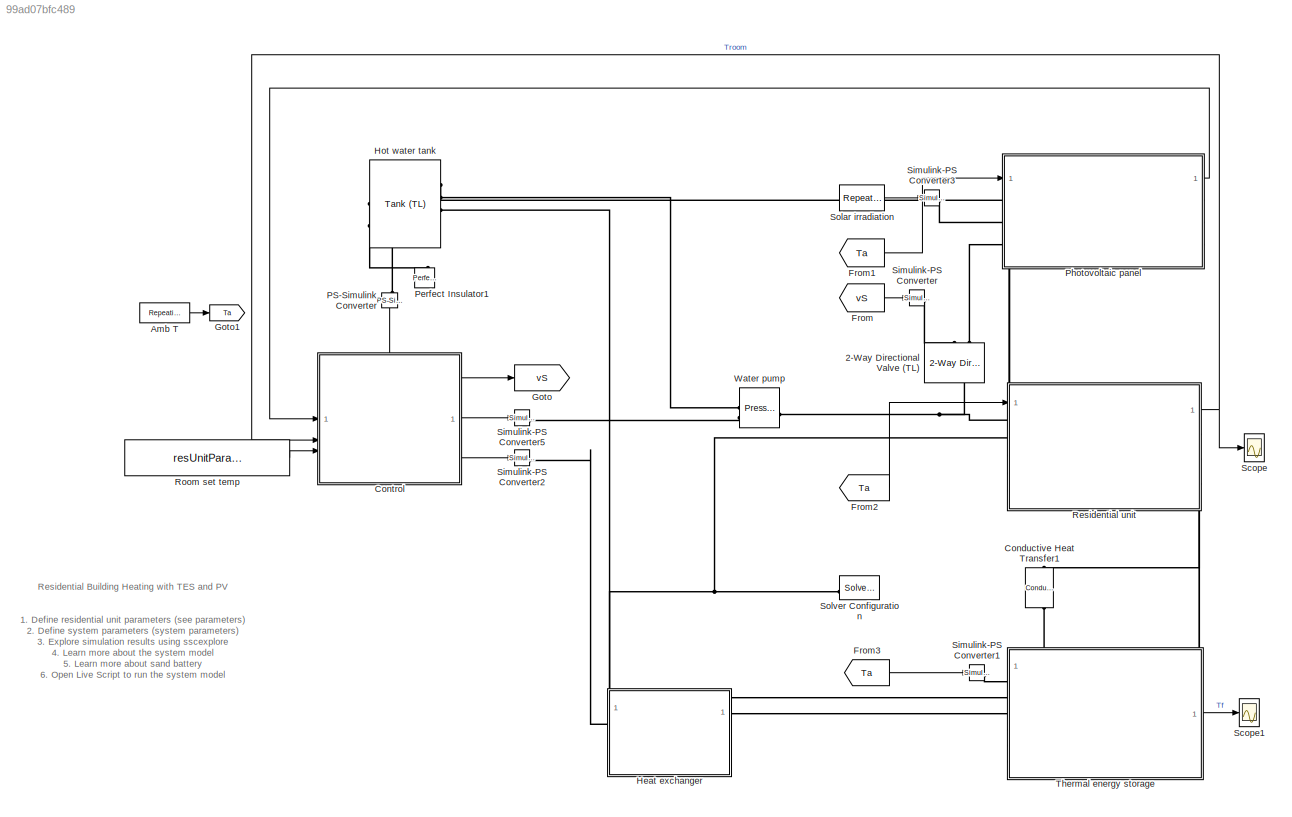
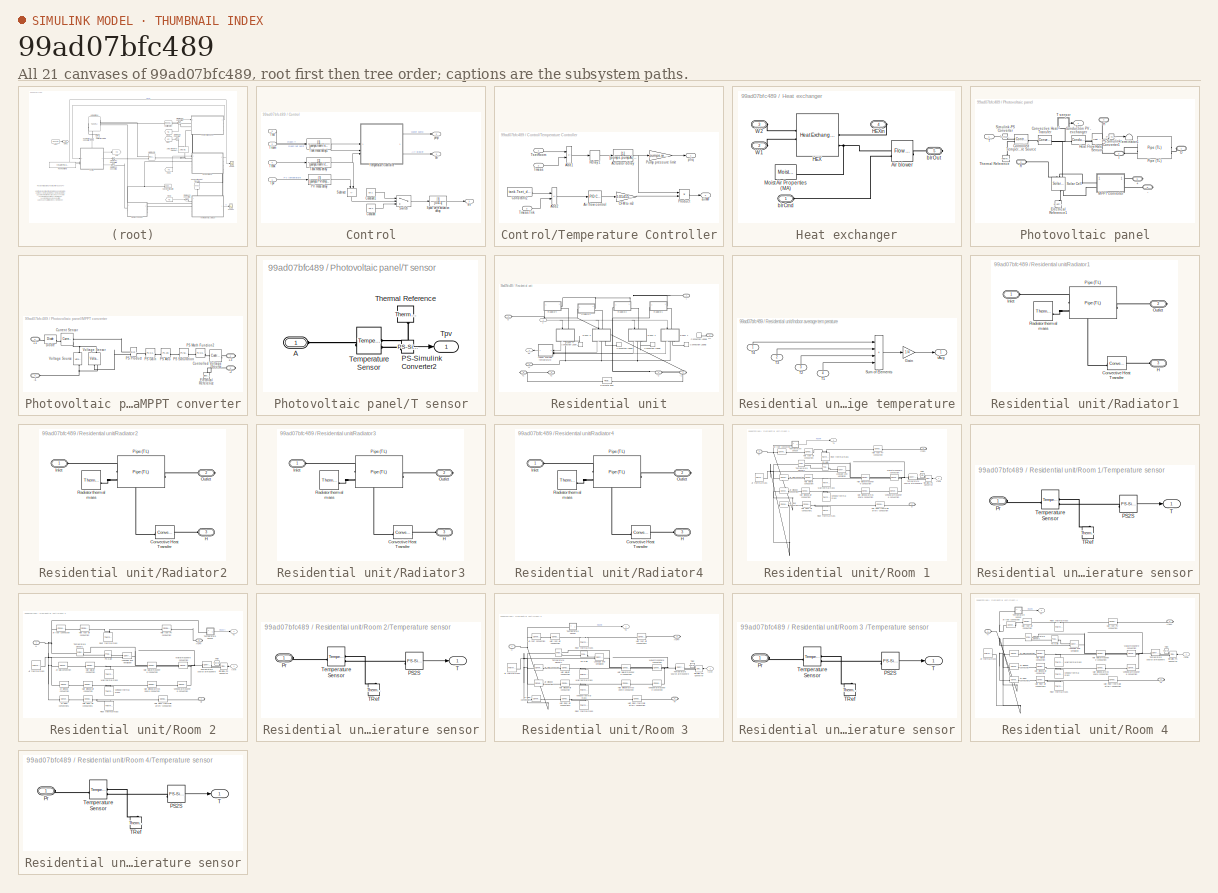
[diagram: thumbnail index - all 21 canvases of the model, root first then tree order]
MODEL slx_99ad07bfc489
KIND model
CONFIG AbsTol = 1e-3
CONFIG EnableMultiTasking = off
CONFIG FixedStep = 20
CONFIG MaxStep = auto
CONFIG MinStep = auto
CONFIG PreLoadFcn = setSystemParams
CONFIG RelTol = 1e-3
CONFIG SampleTimeConstraint = Unconstrained
CONFIG SolverName = VariableStepAuto
CONFIG StartTime = 0.0
CONFIG StopTime = 3600*24
BLOCK [Reference]  Water pump  REF=fl_lib/Thermal Liquid/Sources/Pressure Source (TL)
  NameLocation = top
  SourceBlock = fl_lib/Thermal Liquid/Sources/Pressure Source (TL)
  SourceType = Pressure Source (TL)
BLOCK [Reference] 2-Way Directional Valve (TL)  REF=SimscapeFluids_lib/Thermal Liquid/Valves & Orifices/Directional Control
Valves/2-Way Directional
Valve (TL)
  NameLocation = left
  SourceBlock = SimscapeFluids_lib/Thermal Liquid/Valves & Orifices/Directional Control\nValves/2-Way Directional\nValve (TL)
  SourceType = 2-Way Directional\nValve (TL)
BLOCK [Reference] Amb T  REF=simulink/Sources/Repeating
Sequence
  NameLocation = top
  SourceBlock = simulink/Sources/Repeating\nSequence
  SourceType = Repeating table
BLOCK [Reference] Conductive Heat Transfer1  REF=fl_lib/Thermal/Thermal Elements/Conductive Heat
Transfer
  NameLocation = right
  SourceBlock = fl_lib/Thermal/Thermal Elements/Conductive Heat\nTransfer
  SourceType = Conductive Heat\nTransfer
BLOCK [SubSystem] Control
  PortSchema = {"entries":[{"content":{"sides":[{"content":{"connectorIds":["In1","In2","In3"]},"type":"ConnectorPlacement.EquallySpacedRectSide","uuid":"94b2e64d-5198-497a-a3ac-7835c1f17d91"},{"content":{"connectorIds":["Out1","Out2","Out3"],"side":"RIGHT"},"type":"ConnectorPlacement.EquallySpacedRectSide","uuid":"aae50087-a35d-4e17-a15b-734053a702a5"},{"content":{"connectorIds":["In4"],"side":"TOP"},"type":"Co...<+271ch>
BLOCK [TransferFcn] Control/ PV meas delay 
  Denominator = [pumps.PVtempMeasTime 1]
  NameLocation = top
BLOCK [Constant] Control/Constant
  Value = -5e-2
BLOCK [Constant] Control/Constant1
  Value = 5e-2
BLOCK [TransferFcn] Control/Spool valve actuation delay 
  Denominator = [0.01 1]
BLOCK [Sum] Control/Subtract
  IconShape = rectangular
  Inputs = +-
  NameLocation = left
BLOCK [Switch] Control/Switch
  Criteria = u2 > Threshold
  InputSameDT = off
  SaturateOnIntegerOverflow = off
  Threshold = pumps.valveTlimit
  ZeroCross = off
BLOCK [TransferFcn] Control/Tank meas delay
  Denominator = [pumps.roomTempMeasTime 1]
  NameLocation = top
BLOCK [TransferFcn] Control/Tank meas delay1
  Denominator = [pumps.roomTempMeasTime 1]
  NameLocation = top
BLOCK [SubSystem] Control/Temperature Controller
BLOCK [TransferFcn] Control/Temperature Controller/Actuator delay
  Denominator = [pumps.pumpActuatorDelay 1]
BLOCK [Sum] Control/Temperature Controller/Add1
  IconShape = rectangular
  Inputs = +-
BLOCK [Sum] Control/Temperature Controller/Add2
  IconShape = rectangular
  Inputs = +-
BLOCK [Reference] Control/Temperature Controller/Air flow control  REF=slpidlib/PID Controller
  LibrarySourceBlock = simulink/Continuous/PID Controller
  SourceBlock = slpidlib/PID Controller
  SourceType = PID 1dof
BLOCK [Gain] Control/Temperature Controller/CFM to m3
  Gain = 0.0141584235*1.293
BLOCK [Constant] Control/Temperature Controller/Constant2
  Value = tank.Tset_degC
BLOCK [Product] Control/Temperature Controller/Product
BLOCK [Gain] Control/Temperature Controller/Pump pressure limit
  Gain = pumps.wtrPrLim
BLOCK [Relay] Control/Temperature Controller/Relay1
  OffOutputValue = 0.1
  OffSwitchValue = -1
  OnSwitchValue = 1
BLOCK [Inport] Control/Temperature Controller/Tmeas
  Port = 2
BLOCK [Inport] Control/Temperature Controller/TmeasTnk
  Port = 3
BLOCK [Inport] Control/Temperature Controller/TsetRoom
BLOCK [Outport] Control/Temperature Controller/airMF
  Port = 2
BLOCK [Outport] Control/Temperature Controller/pliq
BLOCK [Inport] Control/Tpv
BLOCK [Inport] Control/Troom
  Port = 2
BLOCK [Inport] Control/Tset
  Port = 3
BLOCK [Inport] Control/Ttank
  Port = 4
BLOCK [Outport] Control/blr
  Port = 3
BLOCK [Outport] Control/pmp
  Port = 2
BLOCK [Outport] Control/vlv
BLOCK [From] From
  GotoTag = vS
BLOCK [From] From1
  GotoTag = Ta
BLOCK [From] From2
  GotoTag = Ta
BLOCK [From] From3
  GotoTag = Ta
BLOCK [Goto] Goto
  GotoTag = vS
BLOCK [Goto] Goto1
  GotoTag = Ta
BLOCK [SubSystem] Heat exchanger
  PortSchema = {"entries":[{"content":{"sides":[{"content":{"connectorIds":["LConn1"]},"type":"ConnectorPlacement.EquallySpacedRectSide","uuid":"01ab44eb-c12d-4ed2-868c-d9720820a3c1"},{"content":{"connectorIds":["RConn1","RConn2"],"side":"RIGHT"},"type":"ConnectorPlacement.EquallySpacedRectSide","uuid":"0fee6253-0b63-4bf2-bc48-ef503382f712"},{"content":{"connectorIds":["LConn2","LConn3"],"side":"TOP"},"type":"Co...<+271ch>
BLOCK [Reference] Heat exchanger/Air blower  REF=fl_lib/Moist Air/Sources/Flow Rate Source
(MA)
  SourceBlock = fl_lib/Moist Air/Sources/Flow Rate Source\n(MA)
  SourceType = Flow Rate Source\n(MA)
BLOCK [Reference] Heat exchanger/HEX  REF=SimscapeFluids_lib/Fluid Network
Interfaces/Heat Exchangers/Heat Exchanger
(TL-MA)
  NameLocation = top
  SourceBlock = SimscapeFluids_lib/Fluid Network\nInterfaces/Heat Exchangers/Heat Exchanger\n(TL-MA)
  SourceType = Heat Exchanger\n(TL-MA)
BLOCK [PMIOPort] Heat exchanger/HEXin
  Port = 4
  Side = Right
BLOCK [Reference] Heat exchanger/Moist Air Properties (MA)  REF=fl_lib/Moist Air/Utilities/Moist Air Properties
(MA)
  SourceBlock = fl_lib/Moist Air/Utilities/Moist Air Properties\n(MA)
  SourceType = Moist Air Properties\n(MA)
BLOCK [PMIOPort] Heat exchanger/W1
  Port = 2
  Side = Left
BLOCK [PMIOPort] Heat exchanger/W2
  NameLocation = top
  Port = 3
  Side = Left
BLOCK [PMIOPort] Heat exchanger/blrCmd
  Side = Left
BLOCK [PMIOPort] Heat exchanger/blrOut
  Port = 5
  Side = Right
BLOCK [Reference] Hot water tank  REF=SimscapeFluids_lib/Thermal Liquid/Tanks & Accumulators/Tank (TL)
  NameLocation = top
  SourceBlock = SimscapeFluids_lib/Thermal Liquid/Tanks & Accumulators/Tank (TL)
  SourceType = Tank (TL)
BLOCK [Reference] PS-Simulink Converter  REF=nesl_utility/PS-Simulink
Converter
  NameLocation = left
  SourceBlock = nesl_utility/PS-Simulink\nConverter
  SourceType = PS-Simulink\nConverter
BLOCK [Reference] Perfect Insulator1  REF=fl_lib/Thermal/Thermal Elements/Perfect Insulator
  NameLocation = right
  SourceBlock = fl_lib/Thermal/Thermal Elements/Perfect Insulator
  SourceType = Perfect Insulator
BLOCK [SubSystem] Photovoltaic panel
  NameLocation = top
  PortSchema = {"entries":[{"content":{"sides":[{"content":{"connectorIds":["LConn1","LConn2","In1","LConn3"]},"type":"ConnectorPlacement.EquallySpacedRectSide","uuid":"0360564f-72df-484c-9030-dc8e52eec76f"},{"content":{"connectorIds":["Out1"],"side":"RIGHT"},"type":"ConnectorPlacement.EquallySpacedRectSide","uuid":"6991191b-726f-47c1-9876-cb30d7467486"},{"content":{"connectorIds":[],"side":"TOP"},"type":"Connec...<+437ch>
BLOCK [PMIOPort] Photovoltaic panel/+
  NameLocation = top
  Port = 6
  Side = Right
BLOCK [PMIOPort] Photovoltaic panel/-
  NameLocation = top
  Port = 5
  Side = Right
BLOCK [Reference] Photovoltaic panel/Conduction PV - exchanger  REF=fl_lib/Thermal/Thermal Elements/Conductive Heat
Transfer
  SourceBlock = fl_lib/Thermal/Thermal Elements/Conductive Heat\nTransfer
  SourceType = Conductive Heat\nTransfer
BLOCK [Reference] Photovoltaic panel/Controlled Temperature Source  REF=fl_lib/Thermal/Thermal Sources/Controlled
Temperature Source
  SourceBlock = fl_lib/Thermal/Thermal Sources/Controlled\nTemperature Source
  SourceType = Controlled\nTemperature Source
BLOCK [Reference] Photovoltaic panel/Convective Heat Transfer  REF=fl_lib/Thermal/Thermal Elements/Convective Heat
Transfer
  NameLocation = top
  SourceBlock = fl_lib/Thermal/Thermal Elements/Convective Heat\nTransfer
  SourceType = Convective Heat\nTransfer
BLOCK [Reference] Photovoltaic panel/Electrical Reference1  REF=fl_lib/Electrical/Electrical Elements/Electrical Reference
  NameLocation = right
  SourceBlock = fl_lib/Electrical/Electrical Elements/Electrical Reference
  SourceType = Electrical Reference
BLOCK [PMIOPort] Photovoltaic panel/H
  NameLocation = top
  Port = 4
  Side = Right
BLOCK [Reference] Photovoltaic panel/Heat Flow Rate Sensor  REF=fl_lib/Thermal/Thermal Sensors/Heat Flow Rate
Sensor
  SourceBlock = fl_lib/Thermal/Thermal Sensors/Heat Flow Rate\nSensor
  SourceType = Heat Flow Rate\nSensor
BLOCK [PMIOPort] Photovoltaic panel/I
  Port = 3
  Side = Left
BLOCK [SubSystem] Photovoltaic panel/MPPT converter
BLOCK [PMIOPort] Photovoltaic panel/MPPT converter/+1
  Port = 2
  Side = Left
BLOCK [PMIOPort] Photovoltaic panel/MPPT converter/+2
  NameLocation = top
  Side = Right
BLOCK [PMIOPort] Photovoltaic panel/MPPT converter/-1
  Port = 4
  Side = Left
BLOCK [PMIOPort] Photovoltaic panel/MPPT converter/-2
  NameLocation = top
  Port = 3
  Side = Right
BLOCK [Reference] Photovoltaic panel/MPPT converter/Controlled Voltage Source  REF=fl_lib/Electrical/Electrical Sources/Controlled Voltage
Source
  SourceBlock = fl_lib/Electrical/Electrical Sources/Controlled Voltage\nSource
  SourceType = Controlled Voltage\nSource
BLOCK [Reference] Photovoltaic panel/MPPT converter/Current Sensor  REF=fl_lib/Electrical/Electrical Sensors/Current Sensor
  SourceBlock = fl_lib/Electrical/Electrical Sensors/Current Sensor
  SourceType = Current Sensor
BLOCK [Reference] Photovoltaic panel/MPPT converter/Diode  REF=fl_lib/Electrical/Electrical Elements/Diode
  SourceBlock = fl_lib/Electrical/Electrical Elements/Diode
  SourceType = Diode
BLOCK [Reference] Photovoltaic panel/MPPT converter/Electrical Reference  REF=fl_lib/Electrical/Electrical Elements/Electrical Reference
  NameLocation = right
  SourceBlock = fl_lib/Electrical/Electrical Elements/Electrical Reference
  SourceType = Electrical Reference
BLOCK [Reference] Photovoltaic panel/MPPT converter/PS Abs  REF=fl_lib/Physical Signals/Nonlinear Operators/PS Abs
  SourceBlock = fl_lib/Physical Signals/Nonlinear Operators/PS Abs
  SourceType = PS Abs
BLOCK [Reference] Photovoltaic panel/MPPT converter/PS Gain  REF=fl_lib/Physical Signals/Functions/PS Gain
  SourceBlock = fl_lib/Physical Signals/Functions/PS Gain
  SourceType = PS Gain
BLOCK [Reference] Photovoltaic panel/MPPT converter/PS Math Function2  REF=fl_lib/Physical Signals/Functions/PS Math Function
  SourceBlock = fl_lib/Physical Signals/Functions/PS Math Function
  SourceType = PS Math Function
BLOCK [Reference] Photovoltaic panel/MPPT converter/PS Product  REF=fl_lib/Physical Signals/Functions/PS Product
  SourceBlock = fl_lib/Physical Signals/Functions/PS Product
  SourceType = PS Product
BLOCK [Reference] Photovoltaic panel/MPPT converter/PS Saturation  REF=fl_lib/Physical Signals/Nonlinear Operators/PS Saturation
  SourceBlock = fl_lib/Physical Signals/Nonlinear Operators/PS Saturation
  SourceType = PS Saturation
BLOCK [Reference] Photovoltaic panel/MPPT converter/Voltage Sensor  REF=fl_lib/Electrical/Electrical Sensors/Voltage Sensor
  NameLocation = right
  SourceBlock = fl_lib/Electrical/Electrical Sensors/Voltage Sensor
  SourceType = Voltage Sensor
BLOCK [Reference] Photovoltaic panel/MPPT converter/Voltage Source  REF=ee_lib/Sources/Voltage Source
  NameLocation = right
  SourceBlock = ee_lib/Sources/Voltage Source
  SourceType = Voltage Source
BLOCK [PMIOPort] Photovoltaic panel/O
  Side = Left
BLOCK [Reference] Photovoltaic panel/PS-Simulink Converter1  REF=nesl_utility/PS-Simulink
Converter
  SourceBlock = nesl_utility/PS-Simulink\nConverter
  SourceType = PS-Simulink\nConverter
BLOCK [Reference] Photovoltaic panel/Pipe (TL)  REF=fl_lib/Thermal Liquid/Elements/Pipe (TL)
  NameLocation = top
  SourceBlock = fl_lib/Thermal Liquid/Elements/Pipe (TL)
  SourceType = Pipe (TL)
BLOCK [PMIOPort] Photovoltaic panel/R
  Port = 2
  Side = Left
BLOCK [Reference] Photovoltaic panel/Simulink-PS Converter  REF=nesl_utility/Simulink-PS
Converter
  SourceBlock = nesl_utility/Simulink-PS\nConverter
  SourceType = Simulink-PS\nConverter
BLOCK [Reference] Photovoltaic panel/Solar Cell  REF=ee_lib/Sources/Solar Cell
  AttributesFormatString = Amerisolar:AS_6M_360W_PERC
  NameLocation = left
  SourceBlock = ee_lib/Sources/Solar Cell
  SourceType = Solar Cell
  Tag = {'toolbox/physmod/elec/library/m/ee_lib_parts';'Sources/Solar_Cell/Amerisolar/AS_6M_360W_PERC.xml'}
BLOCK [Inport] Photovoltaic panel/T
BLOCK [SubSystem] Photovoltaic panel/T sensor
  NameLocation = left
  PortSchema = {"entries":[{"content":{"sides":[{"content":{"connectorIds":["LConn1"]},"type":"ConnectorPlacement.EquallySpacedRectSide","uuid":"68c07b44-9c16-4a15-b6ea-14dc3535499e"},{"content":{"connectorIds":[],"side":"RIGHT"},"type":"ConnectorPlacement.EquallySpacedRectSide","uuid":"10b15f80-9f6a-4bc7-a4ae-eef587b351cc"},{"content":{"connectorIds":[],"side":"TOP"},"type":"ConnectorPlacement.EquallySpacedRect...<+387ch>
  ShowPortLabels = none
BLOCK [PMIOPort] Photovoltaic panel/T sensor/A
  Side = Left
BLOCK [Reference] Photovoltaic panel/T sensor/PS-Simulink Converter2  REF=nesl_utility/PS-Simulink
Converter
  SourceBlock = nesl_utility/PS-Simulink\nConverter
  SourceType = PS-Simulink\nConverter
BLOCK [Reference] Photovoltaic panel/T sensor/Temperature Sensor  REF=fl_lib/Thermal/Thermal Sensors/Temperature Sensor
  SourceBlock = fl_lib/Thermal/Thermal Sensors/Temperature Sensor
  SourceType = Temperature Sensor
BLOCK [Reference] Photovoltaic panel/T sensor/Thermal Reference  REF=fl_lib/Thermal/Thermal Elements/Thermal Reference
  NameLocation = left
  SourceBlock = fl_lib/Thermal/Thermal Elements/Thermal Reference
  SourceType = Thermal Reference
BLOCK [Outport] Photovoltaic panel/T sensor/Tpv
BLOCK [Terminator] Photovoltaic panel/Terminator1
BLOCK [Reference] Photovoltaic panel/Thermal Reference  REF=fl_lib/Thermal/Thermal Elements/Thermal Reference
  NameLocation = right
  SourceBlock = fl_lib/Thermal/Thermal Elements/Thermal Reference
  SourceType = Thermal Reference
BLOCK [Outport] Photovoltaic panel/Tpv
BLOCK [SubSystem] Residential unit
  NameLocation = top
  PortSchema = {"entries":[{"content":{"sides":[{"content":{"connectorIds":["LConn1","LConn2","In1"]},"type":"ConnectorPlacement.EquallySpacedRectSide","uuid":"97b2c06a-15b0-40ca-95d1-a820c5c9ffc3"},{"content":{"connectorIds":["Out1"],"side":"RIGHT"},"type":"ConnectorPlacement.EquallySpacedRectSide","uuid":"71c90047-40c7-4d7b-b242-4c5375799af9"},{"content":{"connectorIds":["LConn3","LConn4","LConn5"],"side":"TOP...<+454ch>
BLOCK [PMIOPort] Residential unit/+1
  Port = 8
  Side = Right
BLOCK [PMIOPort] Residential unit/+2
  Port = 5
  Side = Left
BLOCK [PMIOPort] Residential unit/-1
  NameLocation = top
  Port = 7
  Side = Right
BLOCK [PMIOPort] Residential unit/-2
  NameLocation = top
  Port = 4
  Side = Left
BLOCK [ConnectionLabel] Residential unit/Connection Label
  Label = Hr1
BLOCK [ConnectionLabel] Residential unit/Connection Label1
  Label = Hr1
BLOCK [ConnectionLabel] Residential unit/Connection Label2
  Label = Hr1
BLOCK [ConnectionLabel] Residential unit/Connection Label3
  Label = Hr1
BLOCK [ConnectionLabel] Residential unit/Connection Label4
  Label = Hr1
  NameLocation = top
BLOCK [Reference] Residential unit/Domestic load  REF=fl_lib/Electrical/Electrical Elements/Resistor
  SourceBlock = fl_lib/Electrical/Electrical Elements/Resistor
  SourceType = Resistor
BLOCK [PMIOPort] Residential unit/H
  Port = 6
  Side = Right
BLOCK [PMIOPort] Residential unit/Hr
  NameLocation = top
  Port = 3
  Side = Left
BLOCK [PMIOPort] Residential unit/I
  NameLocation = top
  Side = Left
BLOCK [SubSystem] Residential unit/Indoor average temperature
BLOCK [Gain] Residential unit/Indoor average temperature/Gain
  Gain = 1/4
  NameLocation = top
BLOCK [Sum] Residential unit/Indoor average temperature/Sum of Elements
  IconShape = rectangular
  Inputs = ++++
  NameLocation = top
BLOCK [Inport] Residential unit/Indoor average temperature/T1
  NameLocation = right
  Port = 4
BLOCK [Inport] Residential unit/Indoor average temperature/T2
  NameLocation = right
  Port = 3
BLOCK [Inport] Residential unit/Indoor average temperature/T3
  NameLocation = right
  Port = 2
BLOCK [Inport] Residential unit/Indoor average temperature/T4
  NameLocation = right
BLOCK [Outport] Residential unit/Indoor average temperature/tAvg
  NameLocation = top
  VectorParamsAs1DForOutWhenUnconnected = off
BLOCK [PMIOPort] Residential unit/O
  Port = 2
  Side = Left
BLOCK [SubSystem] Residential unit/Radiator1
BLOCK [Reference] Residential unit/Radiator1/Convective Heat Transfer  REF=fl_lib/Thermal/Thermal Elements/Convective Heat
Transfer
  NameLocation = top
  SourceBlock = fl_lib/Thermal/Thermal Elements/Convective Heat\nTransfer
  SourceType = Convective Heat\nTransfer
BLOCK [PMIOPort] Residential unit/Radiator1/H
  NameLocation = top
  Port = 3
  Side = Left
BLOCK [PMIOPort] Residential unit/Radiator1/Inlet
  Side = Left
BLOCK [PMIOPort] Residential unit/Radiator1/Outlet
  Port = 2
  Side = Right
BLOCK [Reference] Residential unit/Radiator1/Pipe (TL)  REF=SimscapeFluids_lib/Thermal Liquid/Pipes & Fittings/Pipe (TL)
  SourceBlock = SimscapeFluids_lib/Thermal Liquid/Pipes & Fittings/Pipe (TL)
  SourceType = Pipe (TL)
BLOCK [Reference] Residential unit/Radiator1/Radiator thermal mass  REF=fl_lib/Thermal/Thermal Elements/Thermal Mass
  SourceBlock = fl_lib/Thermal/Thermal Elements/Thermal Mass
  SourceType = Thermal Mass
BLOCK [SubSystem] Residential unit/Radiator2
BLOCK [Reference] Residential unit/Radiator2/Convective Heat Transfer  REF=fl_lib/Thermal/Thermal Elements/Convective Heat
Transfer
  NameLocation = top
  SourceBlock = fl_lib/Thermal/Thermal Elements/Convective Heat\nTransfer
  SourceType = Convective Heat\nTransfer
BLOCK [PMIOPort] Residential unit/Radiator2/H
  NameLocation = top
  Port = 3
  Side = Left
BLOCK [PMIOPort] Residential unit/Radiator2/Inlet
  Side = Left
BLOCK [PMIOPort] Residential unit/Radiator2/Outlet
  Port = 2
  Side = Right
BLOCK [Reference] Residential unit/Radiator2/Pipe (TL)  REF=SimscapeFluids_lib/Thermal Liquid/Pipes & Fittings/Pipe (TL)
  SourceBlock = SimscapeFluids_lib/Thermal Liquid/Pipes & Fittings/Pipe (TL)
  SourceType = Pipe (TL)
BLOCK [Reference] Residential unit/Radiator2/Radiator thermal mass  REF=fl_lib/Thermal/Thermal Elements/Thermal Mass
  SourceBlock = fl_lib/Thermal/Thermal Elements/Thermal Mass
  SourceType = Thermal Mass
BLOCK [SubSystem] Residential unit/Radiator3
BLOCK [Reference] Residential unit/Radiator3/Convective Heat Transfer  REF=fl_lib/Thermal/Thermal Elements/Convective Heat
Transfer
  NameLocation = top
  SourceBlock = fl_lib/Thermal/Thermal Elements/Convective Heat\nTransfer
  SourceType = Convective Heat\nTransfer
BLOCK [PMIOPort] Residential unit/Radiator3/H
  NameLocation = top
  Port = 3
  Side = Left
BLOCK [PMIOPort] Residential unit/Radiator3/Inlet
  Side = Left
BLOCK [PMIOPort] Residential unit/Radiator3/Outlet
  Port = 2
  Side = Right
BLOCK [Reference] Residential unit/Radiator3/Pipe (TL)  REF=SimscapeFluids_lib/Thermal Liquid/Pipes & Fittings/Pipe (TL)
  SourceBlock = SimscapeFluids_lib/Thermal Liquid/Pipes & Fittings/Pipe (TL)
  SourceType = Pipe (TL)
BLOCK [Reference] Residential unit/Radiator3/Radiator thermal mass  REF=fl_lib/Thermal/Thermal Elements/Thermal Mass
  SourceBlock = fl_lib/Thermal/Thermal Elements/Thermal Mass
  SourceType = Thermal Mass
BLOCK [SubSystem] Residential unit/Radiator4
BLOCK [Reference] Residential unit/Radiator4/Convective Heat Transfer  REF=fl_lib/Thermal/Thermal Elements/Convective Heat
Transfer
  NameLocation = top
  SourceBlock = fl_lib/Thermal/Thermal Elements/Convective Heat\nTransfer
  SourceType = Convective Heat\nTransfer
BLOCK [PMIOPort] Residential unit/Radiator4/H
  NameLocation = top
  Port = 3
  Side = Left
BLOCK [PMIOPort] Residential unit/Radiator4/Inlet
  Side = Left
BLOCK [PMIOPort] Residential unit/Radiator4/Outlet
  Port = 2
  Side = Right
BLOCK [Reference] Residential unit/Radiator4/Pipe (TL)  REF=SimscapeFluids_lib/Thermal Liquid/Pipes & Fittings/Pipe (TL)
  SourceBlock = SimscapeFluids_lib/Thermal Liquid/Pipes & Fittings/Pipe (TL)
  SourceType = Pipe (TL)
BLOCK [Reference] Residential unit/Radiator4/Radiator thermal mass  REF=fl_lib/Thermal/Thermal Elements/Thermal Mass
  SourceBlock = fl_lib/Thermal/Thermal Elements/Thermal Mass
  SourceType = Thermal Mass
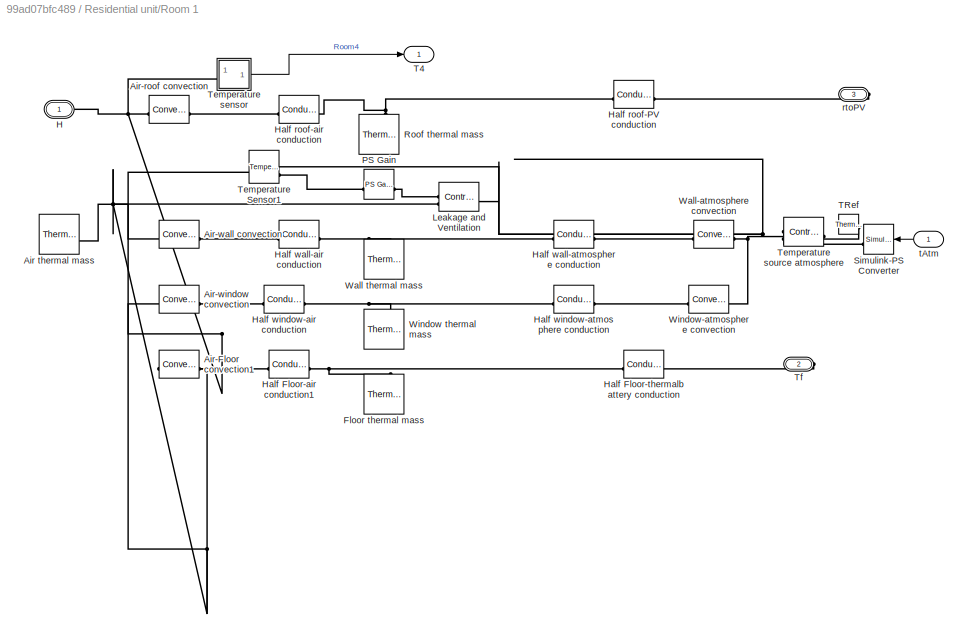
BLOCK [SubSystem] Residential unit/Room 1
  NameLocation = left
  PortSchema = {"entries":[{"content":{"sides":[{"content":{"connectorIds":["In1","LConn1"]},"type":"ConnectorPlacement.EquallySpacedRectSide","uuid":"b82312fb-1d28-4e74-b040-1bbc3aeb736a"},{"content":{"connectorIds":["Out1","RConn1"],"side":"RIGHT"},"type":"ConnectorPlacement.EquallySpacedRectSide","uuid":"7362106d-0819-49fa-9f99-6c3c7d4a3932"},{"content":{"connectorIds":[],"side":"TOP"},"type":"ConnectorPlacem...<+410ch>  <repeated x4 — deduplicated; at blocks: Room 1, Room 2, Room 3, Room 4>
  Tag = PublishSubsystem
BLOCK [Reference] Residential unit/Room 1/Air thermal mass  REF=fl_lib/Thermal/Thermal Elements/Thermal Mass
  SourceBlock = fl_lib/Thermal/Thermal Elements/Thermal Mass
  SourceType = Thermal Mass
BLOCK [Reference] Residential unit/Room 1/Air-Floor convection1  REF=fl_lib/Thermal/Thermal Elements/Convective Heat
Transfer
  SourceBlock = fl_lib/Thermal/Thermal Elements/Convective Heat\nTransfer
  SourceType = Convective Heat\nTransfer
BLOCK [Reference] Residential unit/Room 1/Air-roof convection  REF=fl_lib/Thermal/Thermal Elements/Convective Heat
Transfer
  SourceBlock = fl_lib/Thermal/Thermal Elements/Convective Heat\nTransfer
  SourceType = Convective Heat\nTransfer
BLOCK [Reference] Residential unit/Room 1/Air-wall convection  REF=fl_lib/Thermal/Thermal Elements/Convective Heat
Transfer
  SourceBlock = fl_lib/Thermal/Thermal Elements/Convective Heat\nTransfer
  SourceType = Convective Heat\nTransfer
BLOCK [Reference] Residential unit/Room 1/Air-window convection  REF=fl_lib/Thermal/Thermal Elements/Convective Heat
Transfer
  SourceBlock = fl_lib/Thermal/Thermal Elements/Convective Heat\nTransfer
  SourceType = Convective Heat\nTransfer
BLOCK [Reference] Residential unit/Room 1/Floor thermal mass   REF=fl_lib/Thermal/Thermal Elements/Thermal Mass
  NameLocation = right
  SourceBlock = fl_lib/Thermal/Thermal Elements/Thermal Mass
  SourceType = Thermal Mass
BLOCK [PMIOPort] Residential unit/Room 1/H
  Side = Left
  Tag = PMCPort
BLOCK [Reference] Residential unit/Room 1/Half Floor-air conduction1  REF=fl_lib/Thermal/Thermal Elements/Conductive Heat
Transfer
  SourceBlock = fl_lib/Thermal/Thermal Elements/Conductive Heat\nTransfer
  SourceType = Conductive Heat\nTransfer
BLOCK [Reference] Residential unit/Room 1/Half Floor-thermalbattery conduction  REF=fl_lib/Thermal/Thermal Elements/Conductive Heat
Transfer
  SourceBlock = fl_lib/Thermal/Thermal Elements/Conductive Heat\nTransfer
  SourceType = Conductive Heat\nTransfer
BLOCK [Reference] Residential unit/Room 1/Half roof-PV conduction  REF=fl_lib/Thermal/Thermal Elements/Conductive Heat
Transfer
  SourceBlock = fl_lib/Thermal/Thermal Elements/Conductive Heat\nTransfer
  SourceType = Conductive Heat\nTransfer
BLOCK [Reference] Residential unit/Room 1/Half roof-air conduction  REF=fl_lib/Thermal/Thermal Elements/Conductive Heat
Transfer
  SourceBlock = fl_lib/Thermal/Thermal Elements/Conductive Heat\nTransfer
  SourceType = Conductive Heat\nTransfer
BLOCK [Reference] Residential unit/Room 1/Half wall-air conduction  REF=fl_lib/Thermal/Thermal Elements/Conductive Heat
Transfer
  SourceBlock = fl_lib/Thermal/Thermal Elements/Conductive Heat\nTransfer
  SourceType = Conductive Heat\nTransfer
BLOCK [Reference] Residential unit/Room 1/Half wall-atmosphere conduction  REF=fl_lib/Thermal/Thermal Elements/Conductive Heat
Transfer
  SourceBlock = fl_lib/Thermal/Thermal Elements/Conductive Heat\nTransfer
  SourceType = Conductive Heat\nTransfer
BLOCK [Reference] Residential unit/Room 1/Half window-air conduction  REF=fl_lib/Thermal/Thermal Elements/Conductive Heat
Transfer
  SourceBlock = fl_lib/Thermal/Thermal Elements/Conductive Heat\nTransfer
  SourceType = Conductive Heat\nTransfer
BLOCK [Reference] Residential unit/Room 1/Half window-atmosphere conduction  REF=fl_lib/Thermal/Thermal Elements/Conductive Heat
Transfer
  SourceBlock = fl_lib/Thermal/Thermal Elements/Conductive Heat\nTransfer
  SourceType = Conductive Heat\nTransfer
BLOCK [Reference] Residential unit/Room 1/Leakage and Ventilation  REF=fl_lib/Thermal/Thermal Sources/Controlled Heat Flow
Rate Source
  SourceBlock = fl_lib/Thermal/Thermal Sources/Controlled Heat Flow\nRate Source
  SourceType = Controlled Heat Flow\nRate Source
BLOCK [Reference] Residential unit/Room 1/PS Gain  REF=fl_lib/Physical Signals/Functions/PS Gain
  SourceBlock = fl_lib/Physical Signals/Functions/PS Gain
  SourceType = PS Gain
BLOCK [Reference] Residential unit/Room 1/Roof thermal mass  REF=fl_lib/Thermal/Thermal Elements/Thermal Mass
  NameLocation = right
  SourceBlock = fl_lib/Thermal/Thermal Elements/Thermal Mass
  SourceType = Thermal Mass
BLOCK [Reference] Residential unit/Room 1/Simulink-PS Converter  REF=nesl_utility/Simulink-PS
Converter
  SourceBlock = nesl_utility/Simulink-PS\nConverter
  SourceType = Simulink-PS\nConverter
BLOCK [Outport] Residential unit/Room 1/T4
  VectorParamsAs1DForOutWhenUnconnected = off
BLOCK [Reference] Residential unit/Room 1/TRef  REF=fl_lib/Thermal/Thermal Elements/Thermal Reference
  NameLocation = top
  SourceBlock = fl_lib/Thermal/Thermal Elements/Thermal Reference
  SourceType = Thermal Reference
BLOCK [Reference] Residential unit/Room 1/Temperature Sensor1  REF=fl_lib/Thermal/Thermal Sensors/Temperature Sensor
  SourceBlock = fl_lib/Thermal/Thermal Sensors/Temperature Sensor
  SourceType = Temperature Sensor
BLOCK [SubSystem] Residential unit/Room 1/Temperature sensor
BLOCK [Reference] Residential unit/Room 1/Temperature sensor/PS2S  REF=nesl_utility/PS-Simulink
Converter
  SourceBlock = nesl_utility/PS-Simulink\nConverter
  SourceType = PS-Simulink\nConverter
BLOCK [PMIOPort] Residential unit/Room 1/Temperature sensor/Pr
  Side = Left
BLOCK [Outport] Residential unit/Room 1/Temperature sensor/T
  VectorParamsAs1DForOutWhenUnconnected = off
BLOCK [Reference] Residential unit/Room 1/Temperature sensor/TRef  REF=fl_lib/Thermal/Thermal Elements/Thermal Reference
  NameLocation = right
  SourceBlock = fl_lib/Thermal/Thermal Elements/Thermal Reference
  SourceType = Thermal Reference
BLOCK [Reference] Residential unit/Room 1/Temperature sensor/Temperature Sensor  REF=fl_lib/Thermal/Thermal Sensors/Temperature Sensor
  SourceBlock = fl_lib/Thermal/Thermal Sensors/Temperature Sensor
  SourceType = Temperature Sensor
BLOCK [Reference] Residential unit/Room 1/Temperature source atmosphere  REF=fl_lib/Thermal/Thermal Sources/Controlled
Temperature Source
  NameLocation = top
  SourceBlock = fl_lib/Thermal/Thermal Sources/Controlled\nTemperature Source
  SourceType = Controlled\nTemperature Source
BLOCK [PMIOPort] Residential unit/Room 1/Tf
  NameLocation = top
  Port = 2
  Side = Right
BLOCK [Reference] Residential unit/Room 1/Wall thermal mass  REF=fl_lib/Thermal/Thermal Elements/Thermal Mass
  NameLocation = right
  SourceBlock = fl_lib/Thermal/Thermal Elements/Thermal Mass
  SourceType = Thermal Mass
BLOCK [Reference] Residential unit/Room 1/Wall-atmosphere convection  REF=fl_lib/Thermal/Thermal Elements/Convective Heat
Transfer
  SourceBlock = fl_lib/Thermal/Thermal Elements/Convective Heat\nTransfer
  SourceType = Convective Heat\nTransfer
BLOCK [Reference] Residential unit/Room 1/Window thermal mass  REF=fl_lib/Thermal/Thermal Elements/Thermal Mass
  NameLocation = right
  SourceBlock = fl_lib/Thermal/Thermal Elements/Thermal Mass
  SourceType = Thermal Mass
BLOCK [Reference] Residential unit/Room 1/Window-atmosphere convection  REF=fl_lib/Thermal/Thermal Elements/Convective Heat
Transfer
  SourceBlock = fl_lib/Thermal/Thermal Elements/Convective Heat\nTransfer
  SourceType = Convective Heat\nTransfer
BLOCK [PMIOPort] Residential unit/Room 1/rtoPV
  NameLocation = top
  Port = 3
  Side = Right
BLOCK [Inport] Residential unit/Room 1/tAtm
  NameLocation = top
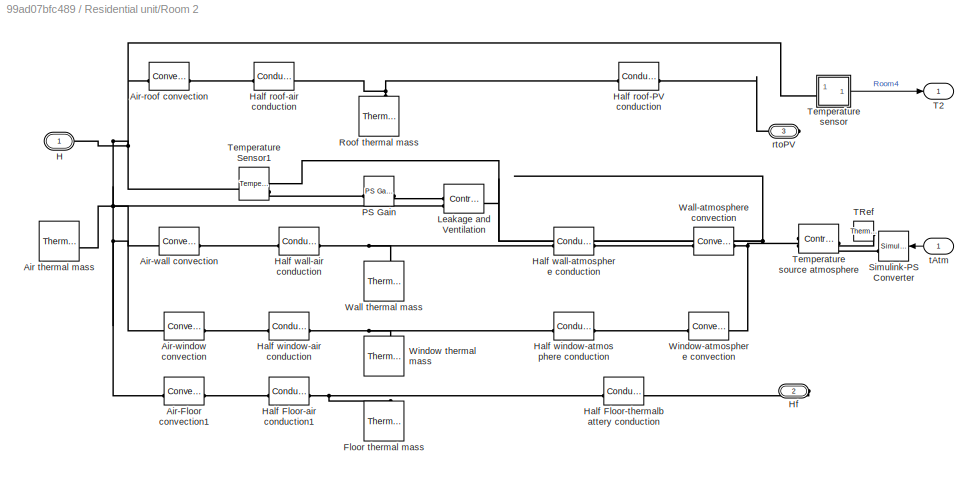
BLOCK [SubSystem] Residential unit/Room 2
  NameLocation = left
  Tag = PublishSubsystem
BLOCK [Reference] Residential unit/Room 2/Air thermal mass  REF=fl_lib/Thermal/Thermal Elements/Thermal Mass
  SourceBlock = fl_lib/Thermal/Thermal Elements/Thermal Mass
  SourceType = Thermal Mass
BLOCK [Reference] Residential unit/Room 2/Air-Floor convection1  REF=fl_lib/Thermal/Thermal Elements/Convective Heat
Transfer
  SourceBlock = fl_lib/Thermal/Thermal Elements/Convective Heat\nTransfer
  SourceType = Convective Heat\nTransfer
BLOCK [Reference] Residential unit/Room 2/Air-roof convection  REF=fl_lib/Thermal/Thermal Elements/Convective Heat
Transfer
  SourceBlock = fl_lib/Thermal/Thermal Elements/Convective Heat\nTransfer
  SourceType = Convective Heat\nTransfer
BLOCK [Reference] Residential unit/Room 2/Air-wall convection  REF=fl_lib/Thermal/Thermal Elements/Convective Heat
Transfer
  SourceBlock = fl_lib/Thermal/Thermal Elements/Convective Heat\nTransfer
  SourceType = Convective Heat\nTransfer
BLOCK [Reference] Residential unit/Room 2/Air-window convection  REF=fl_lib/Thermal/Thermal Elements/Convective Heat
Transfer
  SourceBlock = fl_lib/Thermal/Thermal Elements/Convective Heat\nTransfer
  SourceType = Convective Heat\nTransfer
BLOCK [Reference] Residential unit/Room 2/Floor thermal mass   REF=fl_lib/Thermal/Thermal Elements/Thermal Mass
  NameLocation = right
  SourceBlock = fl_lib/Thermal/Thermal Elements/Thermal Mass
  SourceType = Thermal Mass
BLOCK [PMIOPort] Residential unit/Room 2/H
  Side = Left
  Tag = PMCPort
BLOCK [Reference] Residential unit/Room 2/Half Floor-air conduction1  REF=fl_lib/Thermal/Thermal Elements/Conductive Heat
Transfer
  SourceBlock = fl_lib/Thermal/Thermal Elements/Conductive Heat\nTransfer
  SourceType = Conductive Heat\nTransfer
BLOCK [Reference] Residential unit/Room 2/Half Floor-thermalbattery conduction  REF=fl_lib/Thermal/Thermal Elements/Conductive Heat
Transfer
  SourceBlock = fl_lib/Thermal/Thermal Elements/Conductive Heat\nTransfer
  SourceType = Conductive Heat\nTransfer
BLOCK [Reference] Residential unit/Room 2/Half roof-PV conduction  REF=fl_lib/Thermal/Thermal Elements/Conductive Heat
Transfer
  SourceBlock = fl_lib/Thermal/Thermal Elements/Conductive Heat\nTransfer
  SourceType = Conductive Heat\nTransfer
BLOCK [Reference] Residential unit/Room 2/Half roof-air conduction  REF=fl_lib/Thermal/Thermal Elements/Conductive Heat
Transfer
  SourceBlock = fl_lib/Thermal/Thermal Elements/Conductive Heat\nTransfer
  SourceType = Conductive Heat\nTransfer
BLOCK [Reference] Residential unit/Room 2/Half wall-air conduction  REF=fl_lib/Thermal/Thermal Elements/Conductive Heat
Transfer
  SourceBlock = fl_lib/Thermal/Thermal Elements/Conductive Heat\nTransfer
  SourceType = Conductive Heat\nTransfer
BLOCK [Reference] Residential unit/Room 2/Half wall-atmosphere conduction  REF=fl_lib/Thermal/Thermal Elements/Conductive Heat
Transfer
  SourceBlock = fl_lib/Thermal/Thermal Elements/Conductive Heat\nTransfer
  SourceType = Conductive Heat\nTransfer
BLOCK [Reference] Residential unit/Room 2/Half window-air conduction  REF=fl_lib/Thermal/Thermal Elements/Conductive Heat
Transfer
  SourceBlock = fl_lib/Thermal/Thermal Elements/Conductive Heat\nTransfer
  SourceType = Conductive Heat\nTransfer
BLOCK [Reference] Residential unit/Room 2/Half window-atmosphere conduction  REF=fl_lib/Thermal/Thermal Elements/Conductive Heat
Transfer
  SourceBlock = fl_lib/Thermal/Thermal Elements/Conductive Heat\nTransfer
  SourceType = Conductive Heat\nTransfer
BLOCK [PMIOPort] Residential unit/Room 2/Hf
  NameLocation = top
  Port = 2
  Side = Right
BLOCK [Reference] Residential unit/Room 2/Leakage and Ventilation  REF=fl_lib/Thermal/Thermal Sources/Controlled Heat Flow
Rate Source
  SourceBlock = fl_lib/Thermal/Thermal Sources/Controlled Heat Flow\nRate Source
  SourceType = Controlled Heat Flow\nRate Source
BLOCK [Reference] Residential unit/Room 2/PS Gain  REF=fl_lib/Physical Signals/Functions/PS Gain
  SourceBlock = fl_lib/Physical Signals/Functions/PS Gain
  SourceType = PS Gain
BLOCK [Reference] Residential unit/Room 2/Roof thermal mass  REF=fl_lib/Thermal/Thermal Elements/Thermal Mass
  NameLocation = right
  SourceBlock = fl_lib/Thermal/Thermal Elements/Thermal Mass
  SourceType = Thermal Mass
BLOCK [Reference] Residential unit/Room 2/Simulink-PS Converter  REF=nesl_utility/Simulink-PS
Converter
  SourceBlock = nesl_utility/Simulink-PS\nConverter
  SourceType = Simulink-PS\nConverter
BLOCK [Outport] Residential unit/Room 2/T2
  VectorParamsAs1DForOutWhenUnconnected = off
BLOCK [Reference] Residential unit/Room 2/TRef  REF=fl_lib/Thermal/Thermal Elements/Thermal Reference
  NameLocation = top
  SourceBlock = fl_lib/Thermal/Thermal Elements/Thermal Reference
  SourceType = Thermal Reference
BLOCK [Reference] Residential unit/Room 2/Temperature Sensor1  REF=fl_lib/Thermal/Thermal Sensors/Temperature Sensor
  SourceBlock = fl_lib/Thermal/Thermal Sensors/Temperature Sensor
  SourceType = Temperature Sensor
BLOCK [SubSystem] Residential unit/Room 2/Temperature sensor
BLOCK [Reference] Residential unit/Room 2/Temperature sensor/PS2S  REF=nesl_utility/PS-Simulink
Converter
  SourceBlock = nesl_utility/PS-Simulink\nConverter
  SourceType = PS-Simulink\nConverter
BLOCK [PMIOPort] Residential unit/Room 2/Temperature sensor/Pr
  Side = Left
BLOCK [Outport] Residential unit/Room 2/Temperature sensor/T
  VectorParamsAs1DForOutWhenUnconnected = off
BLOCK [Reference] Residential unit/Room 2/Temperature sensor/TRef  REF=fl_lib/Thermal/Thermal Elements/Thermal Reference
  NameLocation = right
  SourceBlock = fl_lib/Thermal/Thermal Elements/Thermal Reference
  SourceType = Thermal Reference
BLOCK [Reference] Residential unit/Room 2/Temperature sensor/Temperature Sensor  REF=fl_lib/Thermal/Thermal Sensors/Temperature Sensor
  SourceBlock = fl_lib/Thermal/Thermal Sensors/Temperature Sensor
  SourceType = Temperature Sensor
BLOCK [Reference] Residential unit/Room 2/Temperature source atmosphere  REF=fl_lib/Thermal/Thermal Sources/Controlled
Temperature Source
  NameLocation = top
  SourceBlock = fl_lib/Thermal/Thermal Sources/Controlled\nTemperature Source
  SourceType = Controlled\nTemperature Source
BLOCK [Reference] Residential unit/Room 2/Wall thermal mass  REF=fl_lib/Thermal/Thermal Elements/Thermal Mass
  NameLocation = right
  SourceBlock = fl_lib/Thermal/Thermal Elements/Thermal Mass
  SourceType = Thermal Mass
BLOCK [Reference] Residential unit/Room 2/Wall-atmosphere convection  REF=fl_lib/Thermal/Thermal Elements/Convective Heat
Transfer
  SourceBlock = fl_lib/Thermal/Thermal Elements/Convective Heat\nTransfer
  SourceType = Convective Heat\nTransfer
BLOCK [Reference] Residential unit/Room 2/Window thermal mass  REF=fl_lib/Thermal/Thermal Elements/Thermal Mass
  NameLocation = right
  SourceBlock = fl_lib/Thermal/Thermal Elements/Thermal Mass
  SourceType = Thermal Mass
BLOCK [Reference] Residential unit/Room 2/Window-atmosphere convection  REF=fl_lib/Thermal/Thermal Elements/Convective Heat
Transfer
  SourceBlock = fl_lib/Thermal/Thermal Elements/Convective Heat\nTransfer
  SourceType = Convective Heat\nTransfer
BLOCK [PMIOPort] Residential unit/Room 2/rtoPV
  NameLocation = top
  Port = 3
  Side = Right
BLOCK [Inport] Residential unit/Room 2/tAtm
  NameLocation = top
BLOCK [SubSystem] Residential unit/Room 3 
  NameLocation = left
  Tag = PublishSubsystem
BLOCK [Reference] Residential unit/Room 3 /Air thermal mass  REF=fl_lib/Thermal/Thermal Elements/Thermal Mass
  SourceBlock = fl_lib/Thermal/Thermal Elements/Thermal Mass
  SourceType = Thermal Mass
BLOCK [Reference] Residential unit/Room 3 /Air-Floor convection1  REF=fl_lib/Thermal/Thermal Elements/Convective Heat
Transfer
  SourceBlock = fl_lib/Thermal/Thermal Elements/Convective Heat\nTransfer
  SourceType = Convective Heat\nTransfer
BLOCK [Reference] Residential unit/Room 3 /Air-roof convection  REF=fl_lib/Thermal/Thermal Elements/Convective Heat
Transfer
  SourceBlock = fl_lib/Thermal/Thermal Elements/Convective Heat\nTransfer
  SourceType = Convective Heat\nTransfer
BLOCK [Reference] Residential unit/Room 3 /Air-wall convection  REF=fl_lib/Thermal/Thermal Elements/Convective Heat
Transfer
  SourceBlock = fl_lib/Thermal/Thermal Elements/Convective Heat\nTransfer
  SourceType = Convective Heat\nTransfer
BLOCK [Reference] Residential unit/Room 3 /Air-window convection  REF=fl_lib/Thermal/Thermal Elements/Convective Heat
Transfer
  SourceBlock = fl_lib/Thermal/Thermal Elements/Convective Heat\nTransfer
  SourceType = Convective Heat\nTransfer
BLOCK [Reference] Residential unit/Room 3 /Floor thermal mass   REF=fl_lib/Thermal/Thermal Elements/Thermal Mass
  NameLocation = right
  SourceBlock = fl_lib/Thermal/Thermal Elements/Thermal Mass
  SourceType = Thermal Mass
BLOCK [PMIOPort] Residential unit/Room 3 /H
  Side = Left
  Tag = PMCPort
BLOCK [Reference] Residential unit/Room 3 /Half Floor-air conduction1  REF=fl_lib/Thermal/Thermal Elements/Conductive Heat
Transfer
  SourceBlock = fl_lib/Thermal/Thermal Elements/Conductive Heat\nTransfer
  SourceType = Conductive Heat\nTransfer
BLOCK [Reference] Residential unit/Room 3 /Half Floor-thermalbattery conduction  REF=fl_lib/Thermal/Thermal Elements/Conductive Heat
Transfer
  SourceBlock = fl_lib/Thermal/Thermal Elements/Conductive Heat\nTransfer
  SourceType = Conductive Heat\nTransfer
BLOCK [Reference] Residential unit/Room 3 /Half roof-air conduction  REF=fl_lib/Thermal/Thermal Elements/Conductive Heat
Transfer
  SourceBlock = fl_lib/Thermal/Thermal Elements/Conductive Heat\nTransfer
  SourceType = Conductive Heat\nTransfer
BLOCK [Reference] Residential unit/Room 3 /Half roof-air conduction1  REF=fl_lib/Thermal/Thermal Elements/Conductive Heat
Transfer
  SourceBlock = fl_lib/Thermal/Thermal Elements/Conductive Heat\nTransfer
  SourceType = Conductive Heat\nTransfer
BLOCK [Reference] Residential unit/Room 3 /Half wall-air conduction  REF=fl_lib/Thermal/Thermal Elements/Conductive Heat
Transfer
  SourceBlock = fl_lib/Thermal/Thermal Elements/Conductive Heat\nTransfer
  SourceType = Conductive Heat\nTransfer
BLOCK [Reference] Residential unit/Room 3 /Half wall-atmosphere conduction  REF=fl_lib/Thermal/Thermal Elements/Conductive Heat
Transfer
  SourceBlock = fl_lib/Thermal/Thermal Elements/Conductive Heat\nTransfer
  SourceType = Conductive Heat\nTransfer
BLOCK [Reference] Residential unit/Room 3 /Half window-air conduction  REF=fl_lib/Thermal/Thermal Elements/Conductive Heat
Transfer
  SourceBlock = fl_lib/Thermal/Thermal Elements/Conductive Heat\nTransfer
  SourceType = Conductive Heat\nTransfer
BLOCK [Reference] Residential unit/Room 3 /Half window-atmosphere conduction  REF=fl_lib/Thermal/Thermal Elements/Conductive Heat
Transfer
  SourceBlock = fl_lib/Thermal/Thermal Elements/Conductive Heat\nTransfer
  SourceType = Conductive Heat\nTransfer
BLOCK [PMIOPort] Residential unit/Room 3 /Hf
  NameLocation = top
  Port = 2
  Side = Right
BLOCK [Reference] Residential unit/Room 3 /Leakage and Ventilation  REF=fl_lib/Thermal/Thermal Sources/Controlled Heat Flow
Rate Source
  SourceBlock = fl_lib/Thermal/Thermal Sources/Controlled Heat Flow\nRate Source
  SourceType = Controlled Heat Flow\nRate Source
BLOCK [Reference] Residential unit/Room 3 /PS Gain  REF=fl_lib/Physical Signals/Functions/PS Gain
  SourceBlock = fl_lib/Physical Signals/Functions/PS Gain
  SourceType = PS Gain
BLOCK [Reference] Residential unit/Room 3 /Roof thermal mass  REF=fl_lib/Thermal/Thermal Elements/Thermal Mass
  NameLocation = right
  SourceBlock = fl_lib/Thermal/Thermal Elements/Thermal Mass
  SourceType = Thermal Mass
BLOCK [Reference] Residential unit/Room 3 /Simulink-PS Converter  REF=nesl_utility/Simulink-PS
Converter
  SourceBlock = nesl_utility/Simulink-PS\nConverter
  SourceType = Simulink-PS\nConverter
BLOCK [Outport] Residential unit/Room 3 /T3
  VectorParamsAs1DForOutWhenUnconnected = off
BLOCK [Reference] Residential unit/Room 3 /TRef  REF=fl_lib/Thermal/Thermal Elements/Thermal Reference
  NameLocation = top
  SourceBlock = fl_lib/Thermal/Thermal Elements/Thermal Reference
  SourceType = Thermal Reference
BLOCK [Reference] Residential unit/Room 3 /Temperature Sensor1  REF=fl_lib/Thermal/Thermal Sensors/Temperature Sensor
  SourceBlock = fl_lib/Thermal/Thermal Sensors/Temperature Sensor
  SourceType = Temperature Sensor
BLOCK [SubSystem] Residential unit/Room 3 /Temperature sensor
BLOCK [Reference] Residential unit/Room 3 /Temperature sensor/PS2S  REF=nesl_utility/PS-Simulink
Converter
  SourceBlock = nesl_utility/PS-Simulink\nConverter
  SourceType = PS-Simulink\nConverter
BLOCK [PMIOPort] Residential unit/Room 3 /Temperature sensor/Pr
  Side = Left
BLOCK [Outport] Residential unit/Room 3 /Temperature sensor/T
  VectorParamsAs1DForOutWhenUnconnected = off
BLOCK [Reference] Residential unit/Room 3 /Temperature sensor/TRef  REF=fl_lib/Thermal/Thermal Elements/Thermal Reference
  NameLocation = right
  SourceBlock = fl_lib/Thermal/Thermal Elements/Thermal Reference
  SourceType = Thermal Reference
BLOCK [Reference] Residential unit/Room 3 /Temperature sensor/Temperature Sensor  REF=fl_lib/Thermal/Thermal Sensors/Temperature Sensor
  SourceBlock = fl_lib/Thermal/Thermal Sensors/Temperature Sensor
  SourceType = Temperature Sensor
BLOCK [Reference] Residential unit/Room 3 /Temperature source atmosphere  REF=fl_lib/Thermal/Thermal Sources/Controlled
Temperature Source
  NameLocation = top
  SourceBlock = fl_lib/Thermal/Thermal Sources/Controlled\nTemperature Source
  SourceType = Controlled\nTemperature Source
BLOCK [Reference] Residential unit/Room 3 /Wall thermal mass  REF=fl_lib/Thermal/Thermal Elements/Thermal Mass
  NameLocation = right
  SourceBlock = fl_lib/Thermal/Thermal Elements/Thermal Mass
  SourceType = Thermal Mass
BLOCK [Reference] Residential unit/Room 3 /Wall-atmosphere convection  REF=fl_lib/Thermal/Thermal Elements/Convective Heat
Transfer
  SourceBlock = fl_lib/Thermal/Thermal Elements/Convective Heat\nTransfer
  SourceType = Convective Heat\nTransfer
BLOCK [Reference] Residential unit/Room 3 /Window thermal mass  REF=fl_lib/Thermal/Thermal Elements/Thermal Mass
  NameLocation = right
  SourceBlock = fl_lib/Thermal/Thermal Elements/Thermal Mass
  SourceType = Thermal Mass
BLOCK [Reference] Residential unit/Room 3 /Window-atmosphere convection  REF=fl_lib/Thermal/Thermal Elements/Convective Heat
Transfer
  SourceBlock = fl_lib/Thermal/Thermal Elements/Convective Heat\nTransfer
  SourceType = Convective Heat\nTransfer
BLOCK [PMIOPort] Residential unit/Room 3 /rtoPV
  NameLocation = top
  Port = 3
  Side = Right
BLOCK [Inport] Residential unit/Room 3 /tAtm
  NameLocation = top
BLOCK [SubSystem] Residential unit/Room 4
  NameLocation = left
  Tag = PublishSubsystem
BLOCK [Reference] Residential unit/Room 4/Air thermal mass  REF=fl_lib/Thermal/Thermal Elements/Thermal Mass
  SourceBlock = fl_lib/Thermal/Thermal Elements/Thermal Mass
  SourceType = Thermal Mass
BLOCK [Reference] Residential unit/Room 4/Air-Floor convection1  REF=fl_lib/Thermal/Thermal Elements/Convective Heat
Transfer
  SourceBlock = fl_lib/Thermal/Thermal Elements/Convective Heat\nTransfer
  SourceType = Convective Heat\nTransfer
BLOCK [Reference] Residential unit/Room 4/Air-roof convection  REF=fl_lib/Thermal/Thermal Elements/Convective Heat
Transfer
  SourceBlock = fl_lib/Thermal/Thermal Elements/Convective Heat\nTransfer
  SourceType = Convective Heat\nTransfer
BLOCK [Reference] Residential unit/Room 4/Air-wall convection  REF=fl_lib/Thermal/Thermal Elements/Convective Heat
Transfer
  SourceBlock = fl_lib/Thermal/Thermal Elements/Convective Heat\nTransfer
  SourceType = Convective Heat\nTransfer
BLOCK [Reference] Residential unit/Room 4/Air-window convection  REF=fl_lib/Thermal/Thermal Elements/Convective Heat
Transfer
  SourceBlock = fl_lib/Thermal/Thermal Elements/Convective Heat\nTransfer
  SourceType = Convective Heat\nTransfer
BLOCK [Reference] Residential unit/Room 4/Floor thermal mass   REF=fl_lib/Thermal/Thermal Elements/Thermal Mass
  NameLocation = right
  SourceBlock = fl_lib/Thermal/Thermal Elements/Thermal Mass
  SourceType = Thermal Mass
BLOCK [PMIOPort] Residential unit/Room 4/H
  Side = Left
  Tag = PMCPort
BLOCK [Reference] Residential unit/Room 4/Half Floor-air conduction1  REF=fl_lib/Thermal/Thermal Elements/Conductive Heat
Transfer
  SourceBlock = fl_lib/Thermal/Thermal Elements/Conductive Heat\nTransfer
  SourceType = Conductive Heat\nTransfer
BLOCK [Reference] Residential unit/Room 4/Half Floor-thermalbattery conduction  REF=fl_lib/Thermal/Thermal Elements/Conductive Heat
Transfer
  SourceBlock = fl_lib/Thermal/Thermal Elements/Conductive Heat\nTransfer
  SourceType = Conductive Heat\nTransfer
BLOCK [Reference] Residential unit/Room 4/Half roof-PV conduction  REF=fl_lib/Thermal/Thermal Elements/Conductive Heat
Transfer
  SourceBlock = fl_lib/Thermal/Thermal Elements/Conductive Heat\nTransfer
  SourceType = Conductive Heat\nTransfer
BLOCK [Reference] Residential unit/Room 4/Half roof-air conduction  REF=fl_lib/Thermal/Thermal Elements/Conductive Heat
Transfer
  SourceBlock = fl_lib/Thermal/Thermal Elements/Conductive Heat\nTransfer
  SourceType = Conductive Heat\nTransfer
BLOCK [Reference] Residential unit/Room 4/Half wall-air conduction  REF=fl_lib/Thermal/Thermal Elements/Conductive Heat
Transfer
  SourceBlock = fl_lib/Thermal/Thermal Elements/Conductive Heat\nTransfer
  SourceType = Conductive Heat\nTransfer
BLOCK [Reference] Residential unit/Room 4/Half wall-atmosphere conduction  REF=fl_lib/Thermal/Thermal Elements/Conductive Heat
Transfer
  SourceBlock = fl_lib/Thermal/Thermal Elements/Conductive Heat\nTransfer
  SourceType = Conductive Heat\nTransfer
BLOCK [Reference] Residential unit/Room 4/Half window-air conduction  REF=fl_lib/Thermal/Thermal Elements/Conductive Heat
Transfer
  SourceBlock = fl_lib/Thermal/Thermal Elements/Conductive Heat\nTransfer
  SourceType = Conductive Heat\nTransfer
BLOCK [Reference] Residential unit/Room 4/Half window-atmosphere conduction  REF=fl_lib/Thermal/Thermal Elements/Conductive Heat
Transfer
  SourceBlock = fl_lib/Thermal/Thermal Elements/Conductive Heat\nTransfer
  SourceType = Conductive Heat\nTransfer
BLOCK [PMIOPort] Residential unit/Room 4/Hf
  NameLocation = top
  Port = 2
  Side = Right
BLOCK [Reference] Residential unit/Room 4/Leakage and Ventilation  REF=fl_lib/Thermal/Thermal Sources/Controlled Heat Flow
Rate Source
  SourceBlock = fl_lib/Thermal/Thermal Sources/Controlled Heat Flow\nRate Source
  SourceType = Controlled Heat Flow\nRate Source
BLOCK [Reference] Residential unit/Room 4/PS Gain  REF=fl_lib/Physical Signals/Functions/PS Gain
  SourceBlock = fl_lib/Physical Signals/Functions/PS Gain
  SourceType = PS Gain
BLOCK [Reference] Residential unit/Room 4/Roof thermal mass  REF=fl_lib/Thermal/Thermal Elements/Thermal Mass
  NameLocation = right
  SourceBlock = fl_lib/Thermal/Thermal Elements/Thermal Mass
  SourceType = Thermal Mass
BLOCK [Reference] Residential unit/Room 4/Simulink-PS Converter  REF=nesl_utility/Simulink-PS
Converter
  SourceBlock = nesl_utility/Simulink-PS\nConverter
  SourceType = Simulink-PS\nConverter
BLOCK [Outport] Residential unit/Room 4/T4
  VectorParamsAs1DForOutWhenUnconnected = off
BLOCK [Reference] Residential unit/Room 4/TRef  REF=fl_lib/Thermal/Thermal Elements/Thermal Reference
  NameLocation = top
  SourceBlock = fl_lib/Thermal/Thermal Elements/Thermal Reference
  SourceType = Thermal Reference
BLOCK [Reference] Residential unit/Room 4/Temperature Sensor1  REF=fl_lib/Thermal/Thermal Sensors/Temperature Sensor
  SourceBlock = fl_lib/Thermal/Thermal Sensors/Temperature Sensor
  SourceType = Temperature Sensor
BLOCK [SubSystem] Residential unit/Room 4/Temperature sensor
BLOCK [Reference] Residential unit/Room 4/Temperature sensor/PS2S  REF=nesl_utility/PS-Simulink
Converter
  SourceBlock = nesl_utility/PS-Simulink\nConverter
  SourceType = PS-Simulink\nConverter
BLOCK [PMIOPort] Residential unit/Room 4/Temperature sensor/Pr
  Side = Left
BLOCK [Outport] Residential unit/Room 4/Temperature sensor/T
  VectorParamsAs1DForOutWhenUnconnected = off
BLOCK [Reference] Residential unit/Room 4/Temperature sensor/TRef  REF=fl_lib/Thermal/Thermal Elements/Thermal Reference
  NameLocation = right
  SourceBlock = fl_lib/Thermal/Thermal Elements/Thermal Reference
  SourceType = Thermal Reference
BLOCK [Reference] Residential unit/Room 4/Temperature sensor/Temperature Sensor  REF=fl_lib/Thermal/Thermal Sensors/Temperature Sensor
  SourceBlock = fl_lib/Thermal/Thermal Sensors/Temperature Sensor
  SourceType = Temperature Sensor
BLOCK [Reference] Residential unit/Room 4/Temperature source atmosphere  REF=fl_lib/Thermal/Thermal Sources/Controlled
Temperature Source
  NameLocation = top
  SourceBlock = fl_lib/Thermal/Thermal Sources/Controlled\nTemperature Source
  SourceType = Controlled\nTemperature Source
BLOCK [Reference] Residential unit/Room 4/Wall thermal mass  REF=fl_lib/Thermal/Thermal Elements/Thermal Mass
  NameLocation = right
  SourceBlock = fl_lib/Thermal/Thermal Elements/Thermal Mass
  SourceType = Thermal Mass
BLOCK [Reference] Residential unit/Room 4/Wall-atmosphere convection  REF=fl_lib/Thermal/Thermal Elements/Convective Heat
Transfer
  SourceBlock = fl_lib/Thermal/Thermal Elements/Convective Heat\nTransfer
  SourceType = Convective Heat\nTransfer
BLOCK [Reference] Residential unit/Room 4/Window thermal mass  REF=fl_lib/Thermal/Thermal Elements/Thermal Mass
  NameLocation = right
  SourceBlock = fl_lib/Thermal/Thermal Elements/Thermal Mass
  SourceType = Thermal Mass
BLOCK [Reference] Residential unit/Room 4/Window-atmosphere convection  REF=fl_lib/Thermal/Thermal Elements/Convective Heat
Transfer
  SourceBlock = fl_lib/Thermal/Thermal Elements/Convective Heat\nTransfer
  SourceType = Convective Heat\nTransfer
BLOCK [PMIOPort] Residential unit/Room 4/rtoPV
  NameLocation = top
  Port = 3
  Side = Right
BLOCK [Inport] Residential unit/Room 4/tAtm
  NameLocation = top
BLOCK [Inport] Residential unit/T
BLOCK [Outport] Residential unit/To
  VectorParamsAs1DForOutWhenUnconnected = off
BLOCK [Constant] Room set temp
  NameLocation = top
  Value = resUnitParams.tHouseSet_degC
BLOCK [Scope] Scope
  Floating = off
  NumInputPorts = 1
  ScopeSpecificationString = Simulink.scopes.TimeScopeBlockCfg('CurrentConfiguration', extmgr.ConfigurationSet(extmgr.Configuration('Core','General UI',true),extmgr.Configuration('Core','Source UI',true),extmgr.Configuration('Sources','WiredSimulink',true),extmgr.Configuration('Visuals','Time Domain',true,'SerializedDisplays',{struct('MinYLimReal','16.95828','MaxYLimReal','27.36235','YLabelReal','','MinYLimMag','16.95828','Ma...<+1430ch>
BLOCK [Scope] Scope1
  Floating = off
  NumInputPorts = 1
  ScopeSpecificationString = Simulink.scopes.TimeScopeBlockCfg('CurrentConfiguration', extmgr.ConfigurationSet(extmgr.Configuration('Core','General UI',true),extmgr.Configuration('Core','Source UI',true),extmgr.Configuration('Sources','WiredSimulink',true,'DataLoggingVariableName','ScopeData1'),extmgr.Configuration('Visuals','Time Domain',true,'SerializedDisplays',{struct('MinYLimReal','291.42955','MaxYLimReal','358.63401','Y...<+1419ch>
BLOCK [Reference] Simulink-PS Converter  REF=nesl_utility/Simulink-PS
Converter
  SourceBlock = nesl_utility/Simulink-PS\nConverter
  SourceType = Simulink-PS\nConverter
BLOCK [Reference] Simulink-PS Converter1  REF=nesl_utility/Simulink-PS
Converter
  SourceBlock = nesl_utility/Simulink-PS\nConverter
  SourceType = Simulink-PS\nConverter
BLOCK [Reference] Simulink-PS Converter2  REF=nesl_utility/Simulink-PS
Converter
  SourceBlock = nesl_utility/Simulink-PS\nConverter
  SourceType = Simulink-PS\nConverter
BLOCK [Reference] Simulink-PS Converter3  REF=nesl_utility/Simulink-PS
Converter
  SourceBlock = nesl_utility/Simulink-PS\nConverter
  SourceType = Simulink-PS\nConverter
BLOCK [Reference] Simulink-PS Converter5  REF=nesl_utility/Simulink-PS
Converter
  SourceBlock = nesl_utility/Simulink-PS\nConverter
  SourceType = Simulink-PS\nConverter
BLOCK [Reference] Solar irradiation  REF=simulink/Sources/Repeating
Sequence
  NameLocation = left
  SourceBlock = simulink/Sources/Repeating\nSequence
  SourceType = Repeating table
BLOCK [Reference] Solver Configuration  REF=nesl_utility/Solver
Configuration
  NameLocation = top
  SourceBlock = nesl_utility/Solver\nConfiguration
  SourceType = Solver\nConfiguration
BLOCK [SubSystem] Thermal energy storage
  PortSchema = {"entries":[{"content":{"sides":[{"content":{"connectorIds":["LConn1","LConn2","LConn3"]},"type":"ConnectorPlacement.EquallySpacedRectSide","uuid":"edf3f4f8-c2ae-4814-b0e6-abb27056bfc2"},{"content":{"connectorIds":["Out1"],"side":"RIGHT"},"type":"ConnectorPlacement.EquallySpacedRectSide","uuid":"77563953-da57-47d3-a930-11c57840b2f6"},{"content":{"connectorIds":["LConn4","LConn5","LConn6"],"side":"...<+413ch>
  ReferencedSubsystem = sandBattery
ANNOTATION (root): 1. Define residential unit parameters ( see parameters ) 2. Define system parameters ( system parameters ) 3. Explore simulation results using sscexplore 4. Learn more about the system model 5. Learn more about sand battery 6. Open Live Script to run the system model
ANNOTATION (root): Residential Building Heating with TES and PV
LINE Amb T:1 -> Goto1:1
LINE Control/ PV meas delay :1 -> Control/Subtract:1
LINE Control/Constant1:1 -> Control/Switch:1
LINE Control/Constant:1 -> Control/Switch:3
LINE Control/Spool valve actuation delay :1 -> Control/vlv:1
LINE Control/Subtract:1 -> Control/Switch:2
LINE Control/Switch:1 -> Control/Spool valve actuation delay :1
LINE Control/Tank meas delay1:1 -> Control/Temperature Controller:2
NET Control/Tank meas delay:1 -> Control/Subtract:2, Control/Temperature Controller:3
NET Control/Temperature Controller/Actuator delay:1 -> Control/Temperature Controller/Product:1, Control/Temperature Controller/Pump pressure limit:1
LINE Control/Temperature Controller/Add1:1 -> Control/Temperature Controller/Relay1:1
LINE Control/Temperature Controller/Add2:1 -> Control/Temperature Controller/Air flow control:1
LINE Control/Temperature Controller/Air flow control:1 -> Control/Temperature Controller/CFM to m3:1
LINE Control/Temperature Controller/CFM to m3:1 -> Control/Temperature Controller/Product:2
LINE Control/Temperature Controller/Constant2:1 -> Control/Temperature Controller/Add2:1
LINE Control/Temperature Controller/Product:1 -> Control/Temperature Controller/airMF:1
LINE Control/Temperature Controller/Pump pressure limit:1 -> Control/Temperature Controller/pliq:1
LINE Control/Temperature Controller/Relay1:1 -> Control/Temperature Controller/Actuator delay:1
LINE Control/Temperature Controller/Tmeas:1 -> Control/Temperature Controller/Add1:2
LINE Control/Temperature Controller/TmeasTnk:1 -> Control/Temperature Controller/Add2:2
LINE Control/Temperature Controller/TsetRoom:1 -> Control/Temperature Controller/Add1:1
LINE Control/Temperature Controller:1 -> Control/pmp:1
LINE Control/Temperature Controller:2 -> Control/blr:1
LINE Control/Tpv:1 -> Control/ PV meas delay :1
LINE Control/Troom:1 -> Control/Tank meas delay1:1
LINE Control/Tset:1 -> Control/Temperature Controller:1
LINE Control/Ttank:1 -> Control/Tank meas delay:1
LINE Control:1 -> Goto:1
LINE Control:2 -> Simulink-PS Converter5:1
LINE Control:3 -> Simulink-PS Converter2:1
LINE From1:1 -> Photovoltaic panel:1
LINE From2:1 -> Residential unit:1
LINE From3:1 -> Simulink-PS Converter1:1
LINE From:1 -> Simulink-PS Converter:1
LINE PS-Simulink Converter:1 -> Control:4
LINE Photovoltaic panel/PS-Simulink Converter1:1 -> Photovoltaic panel/Terminator1:1
LINE Photovoltaic panel/T sensor/PS-Simulink Converter2:1 -> Photovoltaic panel/T sensor/Tpv:1
LINE Photovoltaic panel/T sensor:1 -> Photovoltaic panel/Tpv:1
LINE Photovoltaic panel/T:1 -> Photovoltaic panel/Simulink-PS Converter:1
LINE Photovoltaic panel:1 -> Control:1
LINE Residential unit/Indoor average temperature/Gain:1 -> Residential unit/Indoor average temperature/tAvg:1
LINE Residential unit/Indoor average temperature/Sum of Elements:1 -> Residential unit/Indoor average temperature/Gain:1
LINE Residential unit/Indoor average temperature/T1:1 -> Residential unit/Indoor average temperature/Sum of Elements:4
LINE Residential unit/Indoor average temperature/T2:1 -> Residential unit/Indoor average temperature/Sum of Elements:3
LINE Residential unit/Indoor average temperature/T3:1 -> Residential unit/Indoor average temperature/Sum of Elements:2
LINE Residential unit/Indoor average temperature/T4:1 -> Residential unit/Indoor average temperature/Sum of Elements:1
LINE Residential unit/Indoor average temperature:1 -> Residential unit/To:1
LINE Residential unit/Room 1/Temperature sensor/PS2S:1 -> Residential unit/Room 1/Temperature sensor/T:1
LINE Residential unit/Room 1/Temperature sensor:1 -> Residential unit/Room 1/T4:1
LINE Residential unit/Room 1/tAtm:1 -> Residential unit/Room 1/Simulink-PS Converter:1
LINE Residential unit/Room 1:1 -> Residential unit/Indoor average temperature:4
LINE Residential unit/Room 2/Temperature sensor/PS2S:1 -> Residential unit/Room 2/Temperature sensor/T:1
LINE Residential unit/Room 2/Temperature sensor:1 -> Residential unit/Room 2/T2:1
LINE Residential unit/Room 2/tAtm:1 -> Residential unit/Room 2/Simulink-PS Converter:1
LINE Residential unit/Room 2:1 -> Residential unit/Indoor average temperature:3
LINE Residential unit/Room 3 /Temperature sensor/PS2S:1 -> Residential unit/Room 3 /Temperature sensor/T:1
LINE Residential unit/Room 3 /Temperature sensor:1 -> Residential unit/Room 3 /T3:1
LINE Residential unit/Room 3 /tAtm:1 -> Residential unit/Room 3 /Simulink-PS Converter:1
LINE Residential unit/Room 3 :1 -> Residential unit/Indoor average temperature:2
LINE Residential unit/Room 4/Temperature sensor/PS2S:1 -> Residential unit/Room 4/Temperature sensor/T:1
LINE Residential unit/Room 4/Temperature sensor:1 -> Residential unit/Room 4/T4:1
LINE Residential unit/Room 4/tAtm:1 -> Residential unit/Room 4/Simulink-PS Converter:1
LINE Residential unit/Room 4:1 -> Residential unit/Indoor average temperature:1
NET Residential unit/T:1 -> Residential unit/Room 1:1, Residential unit/Room 2:1, Residential unit/Room 3 :1, Residential unit/Room 4:1
NET Residential unit:1 -> Control:2, Scope:1
LINE Room set temp:1 -> Control:3
LINE Solar irradiation:1 -> Simulink-PS Converter3:1
LINE Thermal energy storage:1 -> Scope1:1
PLINE  Water pump:LConn1 -- Hot water tank:LConn2
PLINE  Water pump:LConn2 -- Simulink-PS Converter5:RConn1
PNET net1:  Water pump:RConn1 -- 2-Way Directional Valve (TL):LConn1 -- Residential unit:LConn1
PLINE 2-Way Directional Valve (TL):RConn1 -- Simulink-PS Converter:RConn1
PLINE 2-Way Directional Valve (TL):RConn2 -- Photovoltaic panel:LConn3
PLINE Conductive Heat Transfer1:LConn1 -- Thermal energy storage:LConn4
PLINE Conductive Heat Transfer1:RConn1 -- Residential unit:RConn1
PNET net2: Heat exchanger/Air blower:LConn1 -- Heat exchanger/HEX:RConn2 -- Heat exchanger/Moist Air Properties (MA):RConn1
PLINE Heat exchanger/Air blower:LConn2 -- Heat exchanger/blrCmd:RConn1
PLINE Heat exchanger/Air blower:RConn1 -- Heat exchanger/blrOut:RConn1
PLINE Heat exchanger/HEX:LConn1 -- Heat exchanger/W2:RConn1
PLINE Heat exchanger/HEX:LConn2 -- Heat exchanger/W1:RConn1
PLINE Heat exchanger/HEX:RConn1 -- Heat exchanger/HEXin:RConn1
PLINE Heat exchanger:LConn1 -- Simulink-PS Converter2:RConn1
PLINE Heat exchanger:LConn2 -- Hot water tank:LConn3
PNET net3: Heat exchanger:LConn3 -- Residential unit:LConn2 -- Solver Configuration:RConn1
PLINE Heat exchanger:RConn1 -- Thermal energy storage:LConn2
PLINE Heat exchanger:RConn2 -- Thermal energy storage:LConn3
PLINE Hot water tank:LConn1 -- Photovoltaic panel:LConn1
PLINE Hot water tank:RConn1 -- Perfect Insulator1:LConn1
PLINE Hot water tank:RConn2 -- PS-Simulink Converter:LConn1
PLINE Photovoltaic panel/+:RConn1 -- Photovoltaic panel/MPPT converter:RConn1
PLINE Photovoltaic panel/-:RConn1 -- Photovoltaic panel/MPPT converter:RConn2
PNET net4: Photovoltaic panel/Conduction PV - exchanger:LConn1 -- Photovoltaic panel/Convective Heat Transfer:LConn1 -- Photovoltaic panel/Solar Cell:LConn3 -- Photovoltaic panel/T sensor:LConn1
PNET net5: Photovoltaic panel/Conduction PV - exchanger:RConn1 -- Photovoltaic panel/H:RConn1 -- Photovoltaic panel/Heat Flow Rate Sensor:LConn1
PLINE Photovoltaic panel/Controlled Temperature Source:LConn1 -- Photovoltaic panel/Convective Heat Transfer:RConn1
PLINE Photovoltaic panel/Controlled Temperature Source:RConn1 -- Photovoltaic panel/Simulink-PS Converter:RConn1
PLINE Photovoltaic panel/Controlled Temperature Source:RConn2 -- Photovoltaic panel/Thermal Reference:LConn1
PNET net6: Photovoltaic panel/Electrical Reference1:LConn1 -- Photovoltaic panel/MPPT converter:LConn2 -- Photovoltaic panel/Solar Cell:RConn1
PLINE Photovoltaic panel/Heat Flow Rate Sensor:RConn1 -- Photovoltaic panel/PS-Simulink Converter1:LConn1
PLINE Photovoltaic panel/Heat Flow Rate Sensor:RConn2 -- Photovoltaic panel/Pipe (TL):LConn2
PLINE Photovoltaic panel/I:RConn1 -- Photovoltaic panel/Pipe (TL):LConn1
PLINE Photovoltaic panel/MPPT converter/+1:RConn1 -- Photovoltaic panel/MPPT converter/Diode:LConn1
PLINE Photovoltaic panel/MPPT converter/+2:RConn1 -- Photovoltaic panel/MPPT converter/Controlled Voltage Source:LConn1
PNET net7: Photovoltaic panel/MPPT converter/-1:RConn1 -- Photovoltaic panel/MPPT converter/Voltage Sensor:RConn2 -- Photovoltaic panel/MPPT converter/Voltage Source:RConn1
PNET net8: Photovoltaic panel/MPPT converter/-2:RConn1 -- Photovoltaic panel/MPPT converter/Controlled Voltage Source:RConn2 -- Photovoltaic panel/MPPT converter/Electrical Reference:LConn1
PLINE Photovoltaic panel/MPPT converter/Controlled Voltage Source:RConn1 -- Photovoltaic panel/MPPT converter/PS Math Function2:RConn1
PLINE Photovoltaic panel/MPPT converter/Current Sensor:LConn1 -- Photovoltaic panel/MPPT converter/Diode:RConn1
PLINE Photovoltaic panel/MPPT converter/Current Sensor:RConn1 -- Photovoltaic panel/MPPT converter/PS Product:LConn1
PNET net9: Photovoltaic panel/MPPT converter/Current Sensor:RConn2 -- Photovoltaic panel/MPPT converter/Voltage Sensor:LConn1 -- Photovoltaic panel/MPPT converter/Voltage Source:LConn1
PLINE Photovoltaic panel/MPPT converter/PS Abs:LConn1 -- Photovoltaic panel/MPPT converter/PS Gain:RConn1
PLINE Photovoltaic panel/MPPT converter/PS Abs:RConn1 -- Photovoltaic panel/MPPT converter/PS Saturation:LConn1
PLINE Photovoltaic panel/MPPT converter/PS Gain:LConn1 -- Photovoltaic panel/MPPT converter/PS Product:RConn1
PLINE Photovoltaic panel/MPPT converter/PS Math Function2:LConn1 -- Photovoltaic panel/MPPT converter/PS Saturation:RConn1
PLINE Photovoltaic panel/MPPT converter/PS Product:LConn2 -- Photovoltaic panel/MPPT converter/Voltage Sensor:RConn1
PLINE Photovoltaic panel/MPPT converter:LConn1 -- Photovoltaic panel/Solar Cell:LConn2
PLINE Photovoltaic panel/O:RConn1 -- Photovoltaic panel/Pipe (TL):RConn1
PLINE Photovoltaic panel/R:RConn1 -- Photovoltaic panel/Solar Cell:LConn1
PLINE Photovoltaic panel/T sensor/A:RConn1 -- Photovoltaic panel/T sensor/Temperature Sensor:LConn1
PLINE Photovoltaic panel/T sensor/PS-Simulink Converter2:LConn1 -- Photovoltaic panel/T sensor/Temperature Sensor:RConn2
PLINE Photovoltaic panel/T sensor/Temperature Sensor:RConn1 -- Photovoltaic panel/T sensor/Thermal Reference:LConn1
PLINE Photovoltaic panel:LConn2 -- Simulink-PS Converter3:RConn1
PLINE Photovoltaic panel:RConn1 -- Residential unit:LConn3
PLINE Photovoltaic panel:RConn2 -- Residential unit:LConn4
PLINE Photovoltaic panel:RConn3 -- Residential unit:LConn5
PNET net10: Residential unit/+1:RConn1 -- Residential unit/+2:RConn1 -- Residential unit/Domestic load:LConn1
PNET net11: Residential unit/-1:RConn1 -- Residential unit/-2:RConn1 -- Residential unit/Domestic load:RConn1
PLINE Residential unit/Connection Label1:LConn1 -- Residential unit/Room 3 :RConn2
PLINE Residential unit/Connection Label2:LConn1 -- Residential unit/Room 2:RConn2
PLINE Residential unit/Connection Label3:LConn1 -- Residential unit/Room 1:RConn2
PLINE Residential unit/Connection Label4:LConn1 -- Residential unit/Hr:RConn1
PLINE Residential unit/Connection Label:LConn1 -- Residential unit/Room 4:RConn2
PNET net12: Residential unit/H:RConn1 -- Residential unit/Room 1:RConn1 -- Residential unit/Room 2:RConn1 -- Residential unit/Room 3 :RConn1 -- Residential unit/Room 4:RConn1
PNET net13: Residential unit/I:RConn1 -- Residential unit/Radiator1:LConn1 -- Residential unit/Radiator2:LConn1 -- Residential unit/Radiator3:LConn1 -- Residential unit/Radiator4:LConn1
PNET net14: Residential unit/O:RConn1 -- Residential unit/Radiator1:RConn1 -- Residential unit/Radiator2:RConn1 -- Residential unit/Radiator3:RConn1 -- Residential unit/Radiator4:RConn1
PNET net15: Residential unit/Radiator1/Convective Heat Transfer:LConn1 -- Residential unit/Radiator1/Pipe (TL):LConn2 -- Residential unit/Radiator1/Radiator thermal mass:LConn1
PLINE Residential unit/Radiator1/Convective Heat Transfer:RConn1 -- Residential unit/Radiator1/H:RConn1
PLINE Residential unit/Radiator1/Inlet:RConn1 -- Residential unit/Radiator1/Pipe (TL):LConn1
PLINE Residential unit/Radiator1/Outlet:RConn1 -- Residential unit/Radiator1/Pipe (TL):RConn1
PLINE Residential unit/Radiator1:LConn2 -- Residential unit/Room 1:LConn1
PNET net16: Residential unit/Radiator2/Convective Heat Transfer:LConn1 -- Residential unit/Radiator2/Pipe (TL):LConn2 -- Residential unit/Radiator2/Radiator thermal mass:LConn1
PLINE Residential unit/Radiator2/Convective Heat Transfer:RConn1 -- Residential unit/Radiator2/H:RConn1
PLINE Residential unit/Radiator2/Inlet:RConn1 -- Residential unit/Radiator2/Pipe (TL):LConn1
PLINE Residential unit/Radiator2/Outlet:RConn1 -- Residential unit/Radiator2/Pipe (TL):RConn1
PLINE Residential unit/Radiator2:LConn2 -- Residential unit/Room 2:LConn1
PNET net17: Residential unit/Radiator3/Convective Heat Transfer:LConn1 -- Residential unit/Radiator3/Pipe (TL):LConn2 -- Residential unit/Radiator3/Radiator thermal mass:LConn1
PLINE Residential unit/Radiator3/Convective Heat Transfer:RConn1 -- Residential unit/Radiator3/H:RConn1
PLINE Residential unit/Radiator3/Inlet:RConn1 -- Residential unit/Radiator3/Pipe (TL):LConn1
PLINE Residential unit/Radiator3/Outlet:RConn1 -- Residential unit/Radiator3/Pipe (TL):RConn1
PLINE Residential unit/Radiator3:LConn2 -- Residential unit/Room 3 :LConn1
PNET net18: Residential unit/Radiator4/Convective Heat Transfer:LConn1 -- Residential unit/Radiator4/Pipe (TL):LConn2 -- Residential unit/Radiator4/Radiator thermal mass:LConn1
PLINE Residential unit/Radiator4/Convective Heat Transfer:RConn1 -- Residential unit/Radiator4/H:RConn1
PLINE Residential unit/Radiator4/Inlet:RConn1 -- Residential unit/Radiator4/Pipe (TL):LConn1
PLINE Residential unit/Radiator4/Outlet:RConn1 -- Residential unit/Radiator4/Pipe (TL):RConn1
PLINE Residential unit/Radiator4:LConn2 -- Residential unit/Room 4:LConn1
PNET net19: Residential unit/Room 1/Air thermal mass:LConn1 -- Residential unit/Room 1/Air-Floor convection1:RConn1 -- Residential unit/Room 1/Air-roof convection:LConn1 -- Residential unit/Room 1/Air-wall convection:LConn1 -- Residential unit/Room 1/Air-window convection:LConn1 -- Residential unit/Room 1/H:RConn1 -- Residential unit/Room 1/Leakage and Ventilation:RConn2 -- Residential unit/Room 1/Temperature Sensor1:LConn1 -- Residential unit/Room 1/Temperature sensor:LConn1
PLINE Residential unit/Room 1/Air-Floor convection1:LConn1 -- Residential unit/Room 1/Half Floor-air conduction1:RConn1
PLINE Residential unit/Room 1/Air-roof convection:RConn1 -- Residential unit/Room 1/Half roof-air conduction:LConn1
PLINE Residential unit/Room 1/Air-wall convection:RConn1 -- Residential unit/Room 1/Half wall-air conduction:LConn1
PLINE Residential unit/Room 1/Air-window convection:RConn1 -- Residential unit/Room 1/Half window-air conduction:LConn1
PNET net20: Residential unit/Room 1/Floor thermal mass :LConn1 -- Residential unit/Room 1/Half Floor-air conduction1:LConn1 -- Residential unit/Room 1/Half Floor-thermalbattery conduction:RConn1
PLINE Residential unit/Room 1/Half Floor-thermalbattery conduction:LConn1 -- Residential unit/Room 1/Tf:RConn1
PNET net21: Residential unit/Room 1/Half roof-PV conduction:LConn1 -- Residential unit/Room 1/Half roof-air conduction:RConn1 -- Residential unit/Room 1/Roof thermal mass:LConn1
PLINE Residential unit/Room 1/Half roof-PV conduction:RConn1 -- Residential unit/Room 1/rtoPV:RConn1
PNET net22: Residential unit/Room 1/Half wall-air conduction:RConn1 -- Residential unit/Room 1/Half wall-atmosphere conduction:LConn1 -- Residential unit/Room 1/Wall thermal mass:LConn1
PLINE Residential unit/Room 1/Half wall-atmosphere conduction:RConn1 -- Residential unit/Room 1/Wall-atmosphere convection:LConn1
PNET net23: Residential unit/Room 1/Half window-air conduction:RConn1 -- Residential unit/Room 1/Half window-atmosphere conduction:LConn1 -- Residential unit/Room 1/Window thermal mass:LConn1
PLINE Residential unit/Room 1/Half window-atmosphere conduction:RConn1 -- Residential unit/Room 1/Window-atmosphere convection:LConn1
PNET net24: Residential unit/Room 1/Leakage and Ventilation:LConn1 -- Residential unit/Room 1/Temperature Sensor1:RConn1 -- Residential unit/Room 1/Temperature source atmosphere:LConn1 -- Residential unit/Room 1/Wall-atmosphere convection:RConn1 -- Residential unit/Room 1/Window-atmosphere convection:RConn1
PLINE Residential unit/Room 1/Leakage and Ventilation:RConn1 -- Residential unit/Room 1/PS Gain:RConn1
PLINE Residential unit/Room 1/PS Gain:LConn1 -- Residential unit/Room 1/Temperature Sensor1:RConn2
PLINE Residential unit/Room 1/Simulink-PS Converter:RConn1 -- Residential unit/Room 1/Temperature source atmosphere:RConn1
PLINE Residential unit/Room 1/TRef:LConn1 -- Residential unit/Room 1/Temperature source atmosphere:RConn2
PLINE Residential unit/Room 1/Temperature sensor/PS2S:LConn1 -- Residential unit/Room 1/Temperature sensor/Temperature Sensor:RConn2
PLINE Residential unit/Room 1/Temperature sensor/Pr:RConn1 -- Residential unit/Room 1/Temperature sensor/Temperature Sensor:LConn1
PLINE Residential unit/Room 1/Temperature sensor/TRef:LConn1 -- Residential unit/Room 1/Temperature sensor/Temperature Sensor:RConn1
PNET net25: Residential unit/Room 2/Air thermal mass:LConn1 -- Residential unit/Room 2/Air-Floor convection1:RConn1 -- Residential unit/Room 2/Air-roof convection:LConn1 -- Residential unit/Room 2/Air-wall convection:LConn1 -- Residential unit/Room 2/Air-window convection:LConn1 -- Residential unit/Room 2/H:RConn1 -- Residential unit/Room 2/Leakage and Ventilation:RConn2 -- Residential unit/Room 2/Temperature Sensor1:LConn1 -- Residential unit/Room 2/Temperature sensor:LConn1
PLINE Residential unit/Room 2/Air-Floor convection1:LConn1 -- Residential unit/Room 2/Half Floor-air conduction1:RConn1
PLINE Residential unit/Room 2/Air-roof convection:RConn1 -- Residential unit/Room 2/Half roof-air conduction:LConn1
PLINE Residential unit/Room 2/Air-wall convection:RConn1 -- Residential unit/Room 2/Half wall-air conduction:LConn1
PLINE Residential unit/Room 2/Air-window convection:RConn1 -- Residential unit/Room 2/Half window-air conduction:LConn1
PNET net26: Residential unit/Room 2/Floor thermal mass :LConn1 -- Residential unit/Room 2/Half Floor-air conduction1:LConn1 -- Residential unit/Room 2/Half Floor-thermalbattery conduction:RConn1
PLINE Residential unit/Room 2/Half Floor-thermalbattery conduction:LConn1 -- Residential unit/Room 2/Hf:RConn1
PNET net27: Residential unit/Room 2/Half roof-PV conduction:LConn1 -- Residential unit/Room 2/Half roof-air conduction:RConn1 -- Residential unit/Room 2/Roof thermal mass:LConn1
PLINE Residential unit/Room 2/Half roof-PV conduction:RConn1 -- Residential unit/Room 2/rtoPV:RConn1
PNET net28: Residential unit/Room 2/Half wall-air conduction:RConn1 -- Residential unit/Room 2/Half wall-atmosphere conduction:LConn1 -- Residential unit/Room 2/Wall thermal mass:LConn1
PLINE Residential unit/Room 2/Half wall-atmosphere conduction:RConn1 -- Residential unit/Room 2/Wall-atmosphere convection:LConn1
PNET net29: Residential unit/Room 2/Half window-air conduction:RConn1 -- Residential unit/Room 2/Half window-atmosphere conduction:LConn1 -- Residential unit/Room 2/Window thermal mass:LConn1
PLINE Residential unit/Room 2/Half window-atmosphere conduction:RConn1 -- Residential unit/Room 2/Window-atmosphere convection:LConn1
PNET net30: Residential unit/Room 2/Leakage and Ventilation:LConn1 -- Residential unit/Room 2/Temperature Sensor1:RConn1 -- Residential unit/Room 2/Temperature source atmosphere:LConn1 -- Residential unit/Room 2/Wall-atmosphere convection:RConn1 -- Residential unit/Room 2/Window-atmosphere convection:RConn1
PLINE Residential unit/Room 2/Leakage and Ventilation:RConn1 -- Residential unit/Room 2/PS Gain:RConn1
PLINE Residential unit/Room 2/PS Gain:LConn1 -- Residential unit/Room 2/Temperature Sensor1:RConn2
PLINE Residential unit/Room 2/Simulink-PS Converter:RConn1 -- Residential unit/Room 2/Temperature source atmosphere:RConn1
PLINE Residential unit/Room 2/TRef:LConn1 -- Residential unit/Room 2/Temperature source atmosphere:RConn2
PLINE Residential unit/Room 2/Temperature sensor/PS2S:LConn1 -- Residential unit/Room 2/Temperature sensor/Temperature Sensor:RConn2
PLINE Residential unit/Room 2/Temperature sensor/Pr:RConn1 -- Residential unit/Room 2/Temperature sensor/Temperature Sensor:LConn1
PLINE Residential unit/Room 2/Temperature sensor/TRef:LConn1 -- Residential unit/Room 2/Temperature sensor/Temperature Sensor:RConn1
PNET net31: Residential unit/Room 3 /Air thermal mass:LConn1 -- Residential unit/Room 3 /Air-Floor convection1:RConn1 -- Residential unit/Room 3 /Air-roof convection:LConn1 -- Residential unit/Room 3 /Air-wall convection:LConn1 -- Residential unit/Room 3 /Air-window convection:LConn1 -- Residential unit/Room 3 /H:RConn1 -- Residential unit/Room 3 /Leakage and Ventilation:RConn2 -- Residential unit/Room 3 /Temperature Sensor1:LConn1 -- Residential unit/Room 3 /Temperature sensor:LConn1
PLINE Residential unit/Room 3 /Air-Floor convection1:LConn1 -- Residential unit/Room 3 /Half Floor-air conduction1:RConn1
PLINE Residential unit/Room 3 /Air-roof convection:RConn1 -- Residential unit/Room 3 /Half roof-air conduction:LConn1
PLINE Residential unit/Room 3 /Air-wall convection:RConn1 -- Residential unit/Room 3 /Half wall-air conduction:LConn1
PLINE Residential unit/Room 3 /Air-window convection:RConn1 -- Residential unit/Room 3 /Half window-air conduction:LConn1
PNET net32: Residential unit/Room 3 /Floor thermal mass :LConn1 -- Residential unit/Room 3 /Half Floor-air conduction1:LConn1 -- Residential unit/Room 3 /Half Floor-thermalbattery conduction:RConn1
PLINE Residential unit/Room 3 /Half Floor-thermalbattery conduction:LConn1 -- Residential unit/Room 3 /Hf:RConn1
PNET net33: Residential unit/Room 3 /Half roof-air conduction1:LConn1 -- Residential unit/Room 3 /Half roof-air conduction:RConn1 -- Residential unit/Room 3 /Roof thermal mass:LConn1
PLINE Residential unit/Room 3 /Half roof-air conduction1:RConn1 -- Residential unit/Room 3 /rtoPV:RConn1
PNET net34: Residential unit/Room 3 /Half wall-air conduction:RConn1 -- Residential unit/Room 3 /Half wall-atmosphere conduction:LConn1 -- Residential unit/Room 3 /Wall thermal mass:LConn1
PLINE Residential unit/Room 3 /Half wall-atmosphere conduction:RConn1 -- Residential unit/Room 3 /Wall-atmosphere convection:LConn1
PNET net35: Residential unit/Room 3 /Half window-air conduction:RConn1 -- Residential unit/Room 3 /Half window-atmosphere conduction:LConn1 -- Residential unit/Room 3 /Window thermal mass:LConn1
PLINE Residential unit/Room 3 /Half window-atmosphere conduction:RConn1 -- Residential unit/Room 3 /Window-atmosphere convection:LConn1
PNET net36: Residential unit/Room 3 /Leakage and Ventilation:LConn1 -- Residential unit/Room 3 /Temperature Sensor1:RConn1 -- Residential unit/Room 3 /Temperature source atmosphere:LConn1 -- Residential unit/Room 3 /Wall-atmosphere convection:RConn1 -- Residential unit/Room 3 /Window-atmosphere convection:RConn1
PLINE Residential unit/Room 3 /Leakage and Ventilation:RConn1 -- Residential unit/Room 3 /PS Gain:RConn1
PLINE Residential unit/Room 3 /PS Gain:LConn1 -- Residential unit/Room 3 /Temperature Sensor1:RConn2
PLINE Residential unit/Room 3 /Simulink-PS Converter:RConn1 -- Residential unit/Room 3 /Temperature source atmosphere:RConn1
PLINE Residential unit/Room 3 /TRef:LConn1 -- Residential unit/Room 3 /Temperature source atmosphere:RConn2
PLINE Residential unit/Room 3 /Temperature sensor/PS2S:LConn1 -- Residential unit/Room 3 /Temperature sensor/Temperature Sensor:RConn2
PLINE Residential unit/Room 3 /Temperature sensor/Pr:RConn1 -- Residential unit/Room 3 /Temperature sensor/Temperature Sensor:LConn1
PLINE Residential unit/Room 3 /Temperature sensor/TRef:LConn1 -- Residential unit/Room 3 /Temperature sensor/Temperature Sensor:RConn1
PNET net37: Residential unit/Room 4/Air thermal mass:LConn1 -- Residential unit/Room 4/Air-Floor convection1:RConn1 -- Residential unit/Room 4/Air-roof convection:LConn1 -- Residential unit/Room 4/Air-wall convection:LConn1 -- Residential unit/Room 4/Air-window convection:LConn1 -- Residential unit/Room 4/H:RConn1 -- Residential unit/Room 4/Leakage and Ventilation:RConn2 -- Residential unit/Room 4/Temperature Sensor1:LConn1 -- Residential unit/Room 4/Temperature sensor:LConn1
PLINE Residential unit/Room 4/Air-Floor convection1:LConn1 -- Residential unit/Room 4/Half Floor-air conduction1:RConn1
PLINE Residential unit/Room 4/Air-roof convection:RConn1 -- Residential unit/Room 4/Half roof-air conduction:LConn1
PLINE Residential unit/Room 4/Air-wall convection:RConn1 -- Residential unit/Room 4/Half wall-air conduction:LConn1
PLINE Residential unit/Room 4/Air-window convection:RConn1 -- Residential unit/Room 4/Half window-air conduction:LConn1
PNET net38: Residential unit/Room 4/Floor thermal mass :LConn1 -- Residential unit/Room 4/Half Floor-air conduction1:LConn1 -- Residential unit/Room 4/Half Floor-thermalbattery conduction:RConn1
PLINE Residential unit/Room 4/Half Floor-thermalbattery conduction:LConn1 -- Residential unit/Room 4/Hf:RConn1
PNET net39: Residential unit/Room 4/Half roof-PV conduction:LConn1 -- Residential unit/Room 4/Half roof-air conduction:RConn1 -- Residential unit/Room 4/Roof thermal mass:LConn1
PLINE Residential unit/Room 4/Half roof-PV conduction:RConn1 -- Residential unit/Room 4/rtoPV:RConn1
PNET net40: Residential unit/Room 4/Half wall-air conduction:RConn1 -- Residential unit/Room 4/Half wall-atmosphere conduction:LConn1 -- Residential unit/Room 4/Wall thermal mass:LConn1
PLINE Residential unit/Room 4/Half wall-atmosphere conduction:RConn1 -- Residential unit/Room 4/Wall-atmosphere convection:LConn1
PNET net41: Residential unit/Room 4/Half window-air conduction:RConn1 -- Residential unit/Room 4/Half window-atmosphere conduction:LConn1 -- Residential unit/Room 4/Window thermal mass:LConn1
PLINE Residential unit/Room 4/Half window-atmosphere conduction:RConn1 -- Residential unit/Room 4/Window-atmosphere convection:LConn1
PNET net42: Residential unit/Room 4/Leakage and Ventilation:LConn1 -- Residential unit/Room 4/Temperature Sensor1:RConn1 -- Residential unit/Room 4/Temperature source atmosphere:LConn1 -- Residential unit/Room 4/Wall-atmosphere convection:RConn1 -- Residential unit/Room 4/Window-atmosphere convection:RConn1
PLINE Residential unit/Room 4/Leakage and Ventilation:RConn1 -- Residential unit/Room 4/PS Gain:RConn1
PLINE Residential unit/Room 4/PS Gain:LConn1 -- Residential unit/Room 4/Temperature Sensor1:RConn2
PLINE Residential unit/Room 4/Simulink-PS Converter:RConn1 -- Residential unit/Room 4/Temperature source atmosphere:RConn1
PLINE Residential unit/Room 4/TRef:LConn1 -- Residential unit/Room 4/Temperature source atmosphere:RConn2
PLINE Residential unit/Room 4/Temperature sensor/PS2S:LConn1 -- Residential unit/Room 4/Temperature sensor/Temperature Sensor:RConn2
PLINE Residential unit/Room 4/Temperature sensor/Pr:RConn1 -- Residential unit/Room 4/Temperature sensor/Temperature Sensor:LConn1
PLINE Residential unit/Room 4/Temperature sensor/TRef:LConn1 -- Residential unit/Room 4/Temperature sensor/Temperature Sensor:RConn1
PLINE Residential unit:RConn2 -- Thermal energy storage:LConn5
PLINE Residential unit:RConn3 -- Thermal energy storage:LConn6
PLINE Simulink-PS Converter1:RConn1 -- Thermal energy storage:LConn1
note: NET lines group one-source signal fan-out (src -> all destinations, sorted); 1:1 wires keep LINE; PNET lines group multi-terminal physical nets as a canonical sorted terminal list (undirected conserving connections); 2-terminal nets keep the pairwise PLINE form
